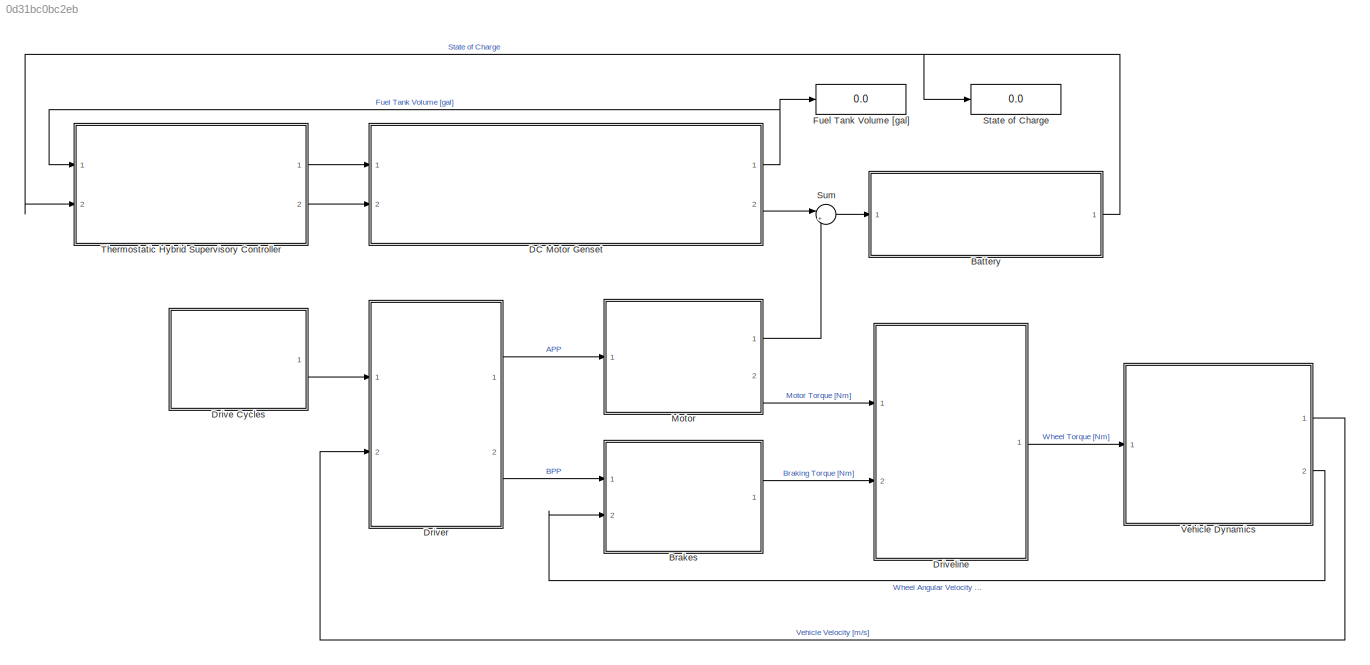
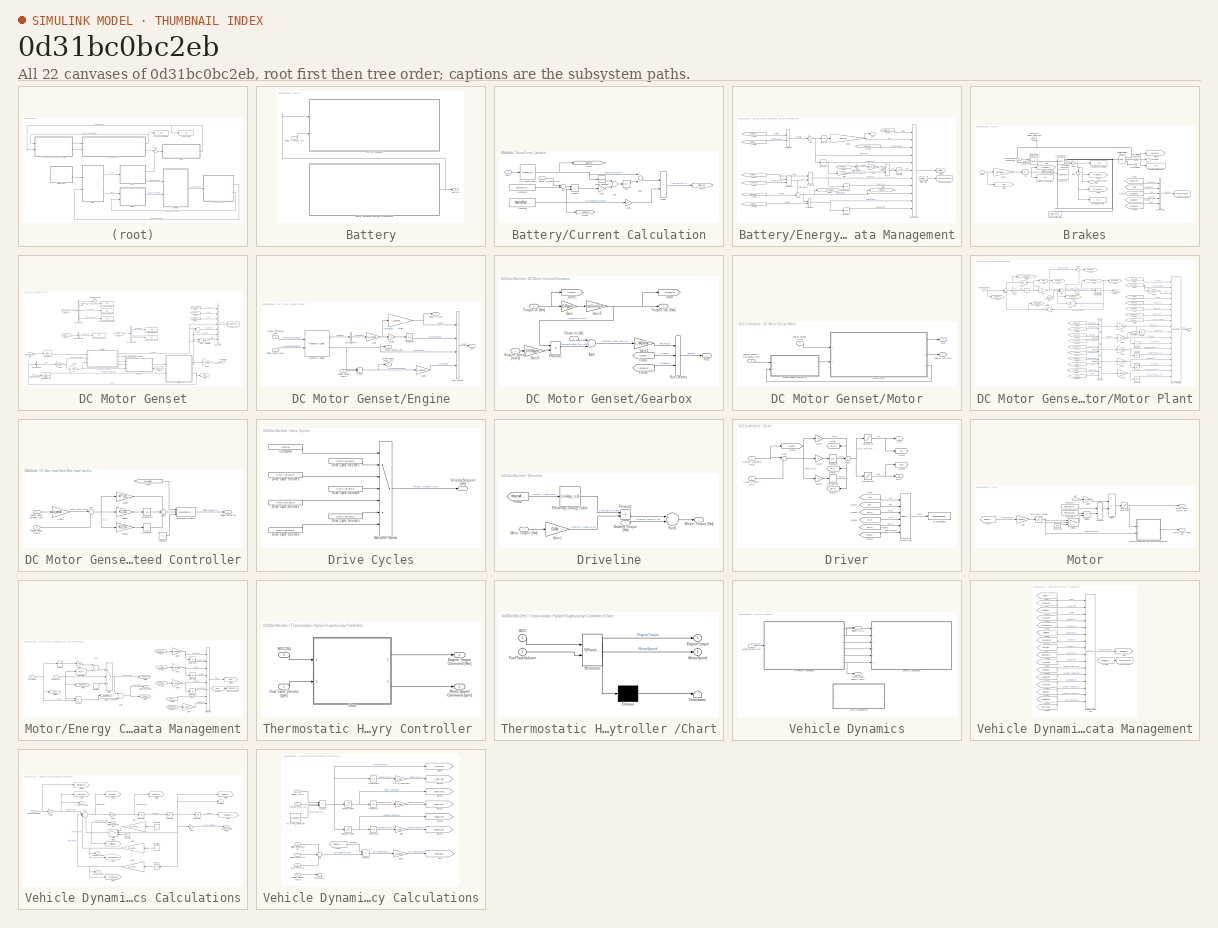
[diagram: thumbnail index - all 22 canvases of the model, root first then tree order]
MODEL slx_0d31bc0bc2eb
KIND model
CONFIG AbsTol = auto
CONFIG EnableMultiTasking = off
CONFIG FixedStep = dt
CONFIG MaxStep = auto
CONFIG MinStep = auto
CONFIG RelTol = 1e-3
CONFIG SampleTimeConstraint = Unconstrained
CONFIG Solver = ode4
CONFIG SolverName = ode4
CONFIG StartTime = 0
CONFIG StopTime = tEnd
BLOCK [SubSystem] Battery
  Ports = [1, 1]
  RequestExecContextInheritance = off
BLOCK [SubSystem] Battery/Current Calculation
  Ports = [2]
  RequestExecContextInheritance = off
BLOCK [Lookup_n-D] Battery/Current Calculation/1-D Lookup Table
  BreakpointsForDimension1 = SOCdata
  InternalRulePriority = Speed
  NumberOfTableDimensions = 1
  Ports = [1, 1]
  RndMeth = Simplest
  Table = openCircuitVoltageData
BLOCK [Sum] Battery/Current Calculation/Add
  InputSameDT = off
  Inputs = +-
  OutDataTypeStr = Inherit: Inherit via internal rule
  Ports = [2, 1]
  SaturateOnIntegerOverflow = off
BLOCK [Sum] Battery/Current Calculation/Add1
  InputSameDT = off
  Inputs = +-
  OutDataTypeStr = Inherit: Inherit via internal rule
  Ports = [2, 1]
  SaturateOnIntegerOverflow = off
BLOCK [Constant] Battery/Current Calculation/Constant
  Value = batteryResistance
BLOCK [Constant] Battery/Current Calculation/Constant2
  Value = accessoryLoad
BLOCK [Product] Battery/Current Calculation/Divide
  InputSameDT = off
  Inputs = */
  OutDataTypeStr = Inherit: Inherit via internal rule
  Ports = [2, 1]
  RndMeth = Floor
  SaturateOnIntegerOverflow = off
BLOCK [Gain] Battery/Current Calculation/Gain
  Gain = 4
  OutDataTypeStr = Inherit: Inherit via internal rule
  ParamDataTypeStr = Inherit: Inherit via internal rule
  SaturateOnIntegerOverflow = off
BLOCK [Gain] Battery/Current Calculation/Gain1
  Gain = 2
  OutDataTypeStr = Inherit: Inherit via internal rule
  ParamDataTypeStr = Inherit: Inherit via internal rule
  SaturateOnIntegerOverflow = off
BLOCK [Goto] Battery/Current Calculation/Goto
  GotoTag = batteryCurrent
  TagVisibility = global
BLOCK [Goto] Battery/Current Calculation/Goto1
  GotoTag = voltageOpenCircuit
  TagVisibility = global
BLOCK [Goto] Battery/Current Calculation/Goto2
  GotoTag = resistance
  TagVisibility = global
BLOCK [Math] Battery/Current Calculation/Math Function
  Operator = square
  Ports = [1, 1]
BLOCK [Inport] Battery/Current Calculation/Power to Motor [W]
  IconDisplay = Port number
  Port = 2
BLOCK [Product] Battery/Current Calculation/Product
  InputSameDT = off
  OutDataTypeStr = Inherit: Inherit via internal rule
  Ports = [2, 1]
  SaturateOnIntegerOverflow = off
BLOCK [Inport] Battery/Current Calculation/SOC
  IconDisplay = Port number
BLOCK [Sqrt] Battery/Current Calculation/Sqrt
BLOCK [Sum] Battery/Current Calculation/Sum
  InputSameDT = off
  OutDataTypeStr = Inherit: Inherit via internal rule
  Ports = [2, 1]
  SaturateOnIntegerOverflow = off
BLOCK [SubSystem] Battery/Energy Calculations and Data Management
  Ports = [0, 1]
  RequestExecContextInheritance = off
BLOCK [From] Battery/Energy Calculations and Data Management/Battery Info
  GotoTag = battery
  TagVisibility = global
BLOCK [BusCreator] Battery/Energy Calculations and Data Management/Bus Creator
  DisplayOption = bar
  InheritFromInputs = on
  Inputs = 11
  Ports = [11, 1]
BLOCK [BusSelector] Battery/Energy Calculations and Data Management/Bus Selector
  OutputAsBus = off
  OutputSignals = position
  Ports = [1, 1]
BLOCK [Product] Battery/Energy Calculations and Data Management/Divide
  InputSameDT = off
  Inputs = */
  OutDataTypeStr = Inherit: Inherit via internal rule
  Ports = [2, 1]
  RndMeth = Floor
  SaturateOnIntegerOverflow = off
BLOCK [From] Battery/Energy Calculations and Data Management/From
  GotoTag = vehicleDynamics
  TagVisibility = global
BLOCK [From] Battery/Energy Calculations and Data Management/From1
  GotoTag = batteryCurrent
  TagVisibility = global
BLOCK [From] Battery/Energy Calculations and Data Management/From2
  GotoTag = resistance
  TagVisibility = global
BLOCK [From] Battery/Energy Calculations and Data Management/From4
  GotoTag = batteryCurrent
  TagVisibility = global
BLOCK [From] Battery/Energy Calculations and Data Management/From5
  GotoTag = voltageOpenCircuit
  TagVisibility = global
BLOCK [From] Battery/Energy Calculations and Data Management/From6
  GotoTag = batteryCurrent
  TagVisibility = global
BLOCK [From] Battery/Energy Calculations and Data Management/From7
  GotoTag = batteryCurrent
  TagVisibility = global
BLOCK [From] Battery/Energy Calculations and Data Management/From8
  GotoTag = voltageOpenCircuit
  TagVisibility = global
BLOCK [From] Battery/Energy Calculations and Data Management/From9
  GotoTag = terminalVoltage
  TagVisibility = global
BLOCK [Gain] Battery/Energy Calculations and Data Management/Gain
  Gain = -k_J2gal
  OutDataTypeStr = Inherit: Inherit via internal rule
  ParamDataTypeStr = Inherit: Inherit via internal rule
  SaturateOnIntegerOverflow = off
BLOCK [Gain] Battery/Energy Calculations and Data Management/Gain1
  Gain = k_m2mi
  OutDataTypeStr = Inherit: Inherit via internal rule
  ParamDataTypeStr = Inherit: Inherit via internal rule
  SaturateOnIntegerOverflow = off
BLOCK [Gain] Battery/Energy Calculations and Data Management/Gain2
  Gain = -1
  OutDataTypeStr = Inherit: Inherit via internal rule
  ParamDataTypeStr = Inherit: Inherit via internal rule
  SaturateOnIntegerOverflow = off
BLOCK [Gain] Battery/Energy Calculations and Data Management/Gain3
  Gain = 100/(batteryCapacity * k_kWh2J)
  OutDataTypeStr = Inherit: Inherit via internal rule
  ParamDataTypeStr = Inherit: Inherit via internal rule
  SaturateOnIntegerOverflow = off
BLOCK [Goto] Battery/Energy Calculations and Data Management/Goto
  GotoTag = terminalVoltage
  TagVisibility = global
BLOCK [Goto] Battery/Energy Calculations and Data Management/Goto1
  GotoTag = busVoltage
  TagVisibility = global
BLOCK [Goto] Battery/Energy Calculations and Data Management/Goto3
  GotoTag = battery
  TagVisibility = global
BLOCK [Integrator] Battery/Energy Calculations and Data Management/Integrator
  InitialCondition = (SOCi / 100) * batteryCapacity *k_kWh2J
  Ports = [1, 1]
BLOCK [Integrator] Battery/Energy Calculations and Data Management/Integrator1
  Ports = [1, 1]
BLOCK [Integrator] Battery/Energy Calculations and Data Management/Integrator2
  Ports = [1, 1]
BLOCK [Integrator] Battery/Energy Calculations and Data Management/Integrator3
  Ports = [1, 1]
BLOCK [Product] Battery/Energy Calculations and Data Management/Product1
  InputSameDT = off
  OutDataTypeStr = Inherit: Inherit via internal rule
  Ports = [2, 1]
  RndMeth = Floor
  SaturateOnIntegerOverflow = off
BLOCK [Product] Battery/Energy Calculations and Data Management/Product2
  InputSameDT = off
  OutDataTypeStr = Inherit: Inherit via internal rule
  Ports = [2, 1]
  RndMeth = Floor
  SaturateOnIntegerOverflow = off
BLOCK [Product] Battery/Energy Calculations and Data Management/Product3
  InputSameDT = off
  OutDataTypeStr = Inherit: Inherit via internal rule
  Ports = [2, 1]
  RndMeth = Floor
  SaturateOnIntegerOverflow = off
BLOCK [Product] Battery/Energy Calculations and Data Management/Product4
  InputSameDT = off
  Inputs = **
  OutDataTypeStr = Inherit: Inherit via internal rule
  Ports = [2, 1]
  RndMeth = Floor
  SaturateOnIntegerOverflow = off
BLOCK [Outport] Battery/Energy Calculations and Data Management/SOC
  IconDisplay = Port number
BLOCK [Saturate] Battery/Energy Calculations and Data Management/Saturation
  InputPortMap = u0
  LowerLimit = 0
  Ports = [1, 1]
  UpperLimit = 300
BLOCK [Sum] Battery/Energy Calculations and Data Management/Sum
  IconShape = round
  InputSameDT = off
  Inputs = -+|
  OutDataTypeStr = Inherit: Inherit via internal rule
  Ports = [2, 1]
  SaturateOnIntegerOverflow = off
BLOCK [ToWorkspace] Battery/Energy Calculations and Data Management/To Workspace
  FixptAsFi = on
  MaxDataPoints = inf
  Ports = [1]
  SampleTime = -1
  SaveFormat = Timeseries
  VariableName = battery
BLOCK [Inport] Battery/Power to Motor [W]
  IconDisplay = Port number
BLOCK [Outport] Battery/SOC [%]
  IconDisplay = Port number
BLOCK [SubSystem] Brakes
  Ports = [2, 1]
  RequestExecContextInheritance = off
BLOCK [Abs] Brakes/Abs
  SaturateOnIntegerOverflow = off
BLOCK [Display] Brakes/Angular Velocity [rad//s]
  Decimation = 1
  Ports = [1]
BLOCK [Inport] Brakes/BPP
  IconDisplay = Port number
BLOCK [BusCreator] Brakes/Brakes Info
  DisplayOption = bar
  InheritFromInputs = on
  Inputs = 5
  Ports = [5, 1]
BLOCK [Display] Brakes/Braking Force [N]
  Decimation = 1
  Ports = [1]
BLOCK [Outport] Brakes/Braking Torque [Nm]
  IconDisplay = Port number
BLOCK [Display] Brakes/Cylinder Pressure [Pa]
  Decimation = 1
  Ports = [1]
BLOCK [Reference] Brakes/Disc Brake  REF=sdl_lib/Brakes & Detents/Rotational/Disc Brake
  Ports = [0, 0, 0, 0, 0, 2]
  SourceBlock = sdl_lib/Brakes & Detents/Rotational/Disc Brake
  SourceProductBaseCode = LD
  SourceProductName = Simscape Driveline
  SourceType = Disc Brake
BLOCK [From] Brakes/From
  GotoTag = angularVelocity
BLOCK [From] Brakes/From1
  GotoTag = BPP
BLOCK [From] Brakes/From2
  GotoTag = brakingForce
BLOCK [From] Brakes/From3
  GotoTag = brakingPressure
BLOCK [From] Brakes/From4
  GotoTag = brakingTorque
BLOCK [Gain] Brakes/Gain
  Gain = 1/r
  OutDataTypeStr = Inherit: Inherit via internal rule
  ParamDataTypeStr = Inherit: Inherit via internal rule
  SaturateOnIntegerOverflow = off
BLOCK [Gain] Brakes/Gain1
  Gain = pBrakeMax/100
  OutDataTypeStr = Inherit: Inherit via internal rule
  ParamDataTypeStr = Inherit: Inherit via internal rule
  SaturateOnIntegerOverflow = off
BLOCK [Gain] Brakes/Gain2
  Gain = -1
  OutDataTypeStr = Inherit: Inherit via internal rule
  ParamDataTypeStr = Inherit: Inherit via internal rule
  SaturateOnIntegerOverflow = off
BLOCK [Goto] Brakes/Goto
  GotoTag = brakingPressure
BLOCK [Goto] Brakes/Goto1
  GotoTag = angularVelocity
BLOCK [Goto] Brakes/Goto2
  GotoTag = brakingTorque
BLOCK [Goto] Brakes/Goto3
  GotoTag = brakingForce
BLOCK [Goto] Brakes/Goto4
  GotoTag = BPP
BLOCK [Reference] Brakes/Ideal Angular Velocity Source  REF=fl_lib/Mechanical/Mechanical Sources/Ideal Angular
Velocity Source
  Ports = [0, 0, 0, 0, 0, 1, 2]
  SourceBlock = fl_lib/Mechanical/Mechanical Sources/Ideal Angular\nVelocity Source
  SourceProductBaseCode = SS
  SourceProductName = Simscape
  SourceType = Ideal Angular\nVelocity Source
BLOCK [Reference] Brakes/Mechanical Rotational Reference  REF=fl_lib/Mechanical/Rotational Elements/Mechanical
Rotational Reference
  Ports = [0, 0, 0, 0, 0, 1]
  SourceBlock = fl_lib/Mechanical/Rotational Elements/Mechanical\nRotational Reference
  SourceProductBaseCode = SS
  SourceProductName = Simscape
  SourceType = Mechanical\nRotational Reference
BLOCK [Reference] Brakes/PS Terminator  REF=fl_lib/Physical Signals/Sinks/PS Terminator
  Ports = [0, 0, 0, 0, 0, 1]
  SourceBlock = fl_lib/Physical Signals/Sinks/PS Terminator
  SourceProductBaseCode = SS
  SourceProductName = Simscape
  SourceType = PS Terminator
BLOCK [Reference] Brakes/PS-Simulink Converter  REF=nesl_utility/PS-Simulink
Converter
  Ports = [0, 1, 0, 0, 0, 1]
  SourceBlock = nesl_utility/PS-Simulink\nConverter
  SourceProductBaseCode = SS
  SourceProductName = Simscape
  SourceType = PS-Simulink\nConverter
BLOCK [Reference] Brakes/PS-Simulink Converter1  REF=nesl_utility/PS-Simulink
Converter
  Ports = [0, 1, 0, 0, 0, 1]
  SourceBlock = nesl_utility/PS-Simulink\nConverter
  SourceProductBaseCode = SS
  SourceProductName = Simscape
  SourceType = PS-Simulink\nConverter
BLOCK [Reference] Brakes/Rotational Motion Sensor  REF=fl_lib/Mechanical/Mechanical Sensors/Ideal Rotational
Motion Sensor
  Ports = [0, 0, 0, 0, 0, 1, 3]
  SourceBlock = fl_lib/Mechanical/Mechanical Sensors/Ideal Rotational\nMotion Sensor
  SourceProductBaseCode = SS
  SourceProductName = Simscape
  SourceType = Ideal Rotational\nMotion Sensor
BLOCK [Reference] Brakes/Simulink-PS Converter  REF=nesl_utility/Simulink-PS
Converter
  Ports = [1, 0, 0, 0, 0, 0, 1]
  SourceBlock = nesl_utility/Simulink-PS\nConverter
  SourceProductBaseCode = SS
  SourceProductName = Simscape
  SourceType = Simulink-PS\nConverter
BLOCK [Reference] Brakes/Simulink-PS Converter1  REF=nesl_utility/Simulink-PS
Converter
  Ports = [1, 0, 0, 0, 0, 0, 1]
  SourceBlock = nesl_utility/Simulink-PS\nConverter
  SourceProductBaseCode = SS
  SourceProductName = Simscape
  SourceType = Simulink-PS\nConverter
BLOCK [Reference] Brakes/Solver Configuration  REF=nesl_utility/Solver
Configuration
  Ports = [0, 0, 0, 0, 0, 0, 1]
  SourceBlock = nesl_utility/Solver\nConfiguration
  SourceProductBaseCode = SS
  SourceProductName = Simscape
  SourceType = Solver\nConfiguration
BLOCK [Terminator] Brakes/Terminator
BLOCK [ToWorkspace] Brakes/To Workspace
  FixptAsFi = on
  MaxDataPoints = inf
  Ports = [1]
  SampleTime = -1
  SaveFormat = Timeseries
  VariableName = brakes
BLOCK [Reference] Brakes/Torque Sensor  REF=fl_lib/Mechanical/Mechanical Sensors/Ideal Torque Sensor
  Ports = [0, 0, 0, 0, 0, 1, 2]
  SourceBlock = fl_lib/Mechanical/Mechanical Sensors/Ideal Torque Sensor
  SourceProductBaseCode = SS
  SourceProductName = Simscape
  SourceType = Ideal Torque Sensor
BLOCK [Inport] Brakes/Wheel Angular Velocity [rad//s]
  IconDisplay = Port number
  Port = 2
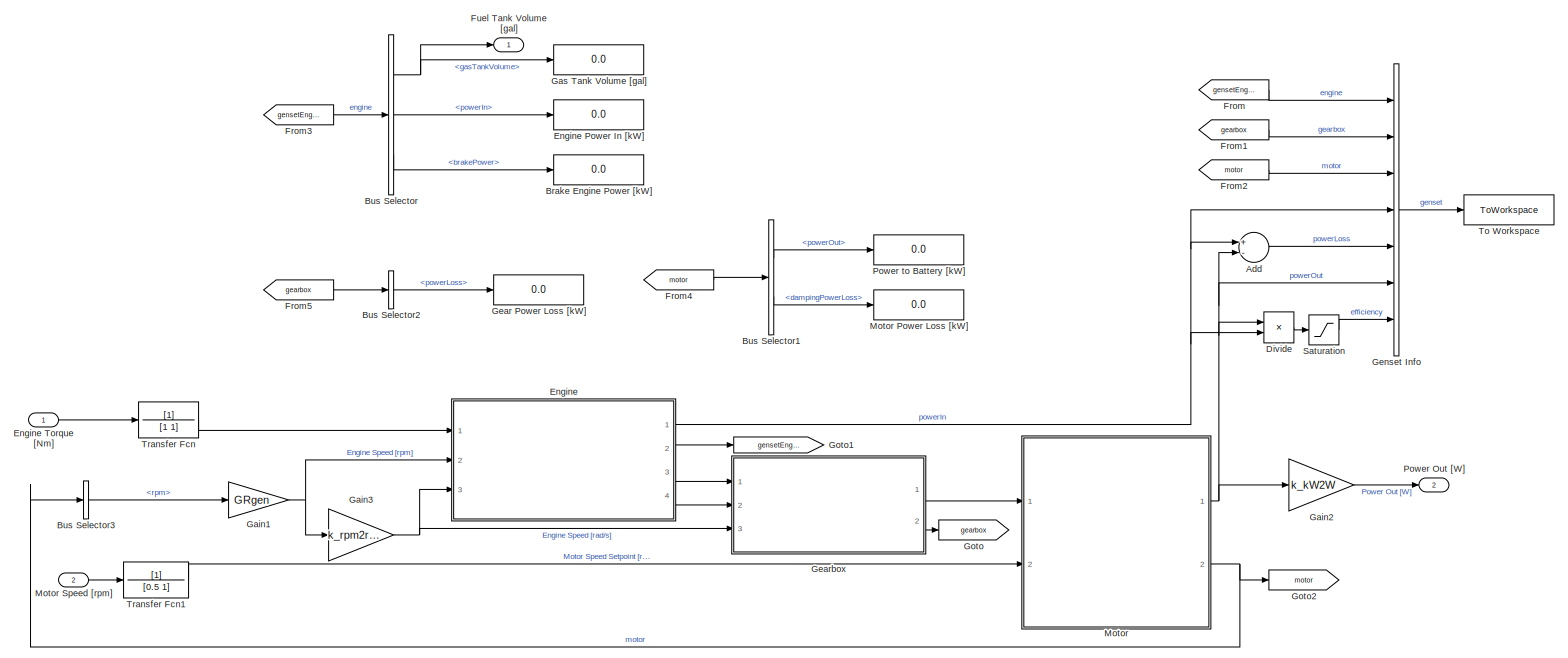
[diagram: DC Motor Genset - part 1/1, most of the canvas]
BLOCK [SubSystem] DC Motor Genset
  Ports = [2, 2]
  RequestExecContextInheritance = off
BLOCK [Sum] DC Motor Genset/Add
  InputSameDT = off
  Inputs = +-
  OutDataTypeStr = Inherit: Inherit via internal rule
  Ports = [2, 1]
  SaturateOnIntegerOverflow = off
BLOCK [Display] DC Motor Genset/Brake Engine Power [kW]
  Decimation = 1
  Ports = [1]
BLOCK [BusSelector] DC Motor Genset/Bus Selector
  OutputAsBus = off
  OutputSignals = gasTankVolume,powerIn,brakePower
  Ports = [1, 3]
BLOCK [BusSelector] DC Motor Genset/Bus Selector1
  OutputAsBus = off
  OutputSignals = powerOut,dampingPowerLoss
  Ports = [1, 2]
BLOCK [BusSelector] DC Motor Genset/Bus Selector2
  OutputAsBus = off
  OutputSignals = powerLoss
  Ports = [1, 1]
BLOCK [BusSelector] DC Motor Genset/Bus Selector3
  OutputAsBus = off
  OutputSignals = rpm
  Ports = [1, 1]
BLOCK [Product] DC Motor Genset/Divide
  InputSameDT = off
  Inputs = */
  OutDataTypeStr = Inherit: Inherit via internal rule
  Ports = [2, 1]
  RndMeth = Floor
  SaturateOnIntegerOverflow = off
BLOCK [SubSystem] DC Motor Genset/Engine
  Ports = [3, 4]
  RequestExecContextInheritance = off
BLOCK [Display] DC Motor Genset/Engine Power In [kW]
  Decimation = 1
  Ports = [1]
BLOCK [Inport] DC Motor Genset/Engine Torque [Nm]
  IconDisplay = Port number
BLOCK [Outport] DC Motor Genset/Engine/Brake Engine Power [W]
  IconDisplay = Port number
  Port = 4
BLOCK [Outport] DC Motor Genset/Engine/Brake Torque [Nm]
  IconDisplay = Port number
  Port = 3
BLOCK [BusCreator] DC Motor Genset/Engine/Bus Creator
  DisplayOption = bar
  InheritFromInputs = on
  Inputs = 4
  Ports = [4, 1]
BLOCK [BusSelector] DC Motor Genset/Engine/Bus Selector
  OutputAsBus = off
  OutputSignals = FuelVolFlw
  Ports = [1, 1]
BLOCK [Inport] DC Motor Genset/Engine/Engine Speed [rad//s]
  IconDisplay = Port number
  Port = 3
BLOCK [Inport] DC Motor Genset/Engine/Engine Speed [rpm]
  IconDisplay = Port number
  Port = 2
BLOCK [Gain] DC Motor Genset/Engine/Gain
  Gain = k_m32gal
  OutDataTypeStr = Inherit: Inherit via internal rule
  ParamDataTypeStr = Inherit: Inherit via internal rule
  SaturateOnIntegerOverflow = off
BLOCK [Gain] DC Motor Genset/Engine/Gain1
  Gain = k_gal2kWh*k_hr2s
  OutDataTypeStr = Inherit: Inherit via internal rule
  ParamDataTypeStr = Inherit: Inherit via internal rule
  SaturateOnIntegerOverflow = off
BLOCK [Gain] DC Motor Genset/Engine/Gain2
  Gain = k_W2kW
  OutDataTypeStr = Inherit: Inherit via internal rule
  ParamDataTypeStr = Inherit: Inherit via internal rule
  SaturateOnIntegerOverflow = off
BLOCK [Gain] DC Motor Genset/Engine/Gain3
  Gain = -1
  OutDataTypeStr = Inherit: Inherit via internal rule
  ParamDataTypeStr = Inherit: Inherit via internal rule
  SaturateOnIntegerOverflow = off
BLOCK [Outport] DC Motor Genset/Engine/Info
  IconDisplay = Port number
  Port = 2
BLOCK [Integrator] DC Motor Genset/Engine/Integrator
  InitialCondition = initialGasVolume
  Ports = [1, 1]
BLOCK [Reference] DC Motor Genset/Engine/Mapped SI Engine  REF=autolibsharedmappedengines/Mapped SI Engine
  Ports = [2, 2]
  SourceBlock = autolibsharedmappedengines/Mapped SI Engine
  SourceProductBaseCode = PW
  SourceProductName = Powertrain Blockset
  SourceType = Mapped SI Engine
BLOCK [Outport] DC Motor Genset/Engine/Power In [kW]
  IconDisplay = Port number
BLOCK [Product] DC Motor Genset/Engine/Product
  InputSameDT = off
  OutDataTypeStr = Inherit: Inherit via internal rule
  Ports = [2, 1]
  RndMeth = Floor
  SaturateOnIntegerOverflow = off
BLOCK [Inport] DC Motor Genset/Engine/Torque Command [Nm]
  IconDisplay = Port number
BLOCK [From] DC Motor Genset/From
  GotoTag = gensetEngine
  TagVisibility = global
BLOCK [From] DC Motor Genset/From1
  GotoTag = gearbox
BLOCK [From] DC Motor Genset/From2
  GotoTag = motor
BLOCK [From] DC Motor Genset/From3
  GotoTag = gensetEngine
  TagVisibility = global
BLOCK [From] DC Motor Genset/From4
  GotoTag = motor
BLOCK [From] DC Motor Genset/From5
  GotoTag = gearbox
BLOCK [Outport] DC Motor Genset/Fuel Tank Volume [gal]
  IconDisplay = Port number
BLOCK [Gain] DC Motor Genset/Gain1
  Gain = GRgen
  OutDataTypeStr = Inherit: Inherit via internal rule
  ParamDataTypeStr = Inherit: Inherit via internal rule
  SaturateOnIntegerOverflow = off
BLOCK [Gain] DC Motor Genset/Gain2
  Gain = k_kW2W
  OutDataTypeStr = Inherit: Inherit via internal rule
  ParamDataTypeStr = Inherit: Inherit via internal rule
  SaturateOnIntegerOverflow = off
BLOCK [Gain] DC Motor Genset/Gain3
  Gain = k_rpm2rps
  OutDataTypeStr = Inherit: Inherit via internal rule
  ParamDataTypeStr = Inherit: Inherit via internal rule
  SaturateOnIntegerOverflow = off
BLOCK [Display] DC Motor Genset/Gas Tank Volume [gal]
  Decimation = 1
  Ports = [1]
BLOCK [Display] DC Motor Genset/Gear Power Loss [kW]
  Decimation = 1
  Ports = [1]
BLOCK [SubSystem] DC Motor Genset/Gearbox
  Ports = [3, 2]
  RequestExecContextInheritance = off
BLOCK [Sum] DC Motor Genset/Gearbox/Add
  InputSameDT = off
  Inputs = +-
  OutDataTypeStr = Inherit: Inherit via internal rule
  Ports = [2, 1]
  SaturateOnIntegerOverflow = off
BLOCK [BusCreator] DC Motor Genset/Gearbox/Bus Creator
  DisplayOption = bar
  InheritFromInputs = on
  Inputs = 3
  Ports = [3, 1]
BLOCK [Inport] DC Motor Genset/Gearbox/Engine Speed [rad//s]
  IconDisplay = Port number
  Port = 3
BLOCK [From] DC Motor Genset/Gearbox/From
  GotoTag = torqueIn
BLOCK [From] DC Motor Genset/Gearbox/From1
  GotoTag = torqueOut
BLOCK [Gain] DC Motor Genset/Gearbox/Gain
  Gain = GRgen
  OutDataTypeStr = Inherit: Inherit via internal rule
  ParamDataTypeStr = Inherit: Inherit via internal rule
  SaturateOnIntegerOverflow = off
BLOCK [Gain] DC Motor Genset/Gearbox/Gain1
  Gain = k_W2kW
  OutDataTypeStr = Inherit: Inherit via internal rule
  ParamDataTypeStr = Inherit: Inherit via internal rule
  SaturateOnIntegerOverflow = off
BLOCK [Gain] DC Motor Genset/Gearbox/Gain2
  Gain = etaGenGR
  OutDataTypeStr = Inherit: Inherit via internal rule
  ParamDataTypeStr = Inherit: Inherit via internal rule
  SaturateOnIntegerOverflow = off
BLOCK [Gain] DC Motor Genset/Gearbox/Gain3
  Gain = 1/GRgen
  OutDataTypeStr = Inherit: Inherit via internal rule
  ParamDataTypeStr = Inherit: Inherit via internal rule
  SaturateOnIntegerOverflow = off
BLOCK [Goto] DC Motor Genset/Gearbox/Goto
  GotoTag = torqueOut
BLOCK [Goto] DC Motor Genset/Gearbox/Goto1
  GotoTag = torqueIn
BLOCK [Outport] DC Motor Genset/Gearbox/Info
  IconDisplay = Port number
  Port = 2
BLOCK [Inport] DC Motor Genset/Gearbox/Power In [W]
  IconDisplay = Port number
  Port = 2
BLOCK [Product] DC Motor Genset/Gearbox/Product1
  InputSameDT = off
  OutDataTypeStr = Inherit: Inherit via internal rule
  Ports = [2, 1]
  RndMeth = Floor
  SaturateOnIntegerOverflow = off
BLOCK [Inport] DC Motor Genset/Gearbox/Torque In [Nm]
  IconDisplay = Port number
BLOCK [Outport] DC Motor Genset/Gearbox/Torque Out [Nm]
  IconDisplay = Port number
BLOCK [BusCreator] DC Motor Genset/Genset Info
  DisplayOption = bar
  InheritFromInputs = on
  Inputs = 7
  Ports = [7, 1]
BLOCK [Goto] DC Motor Genset/Goto
  GotoTag = gearbox
BLOCK [Goto] DC Motor Genset/Goto1
  GotoTag = gensetEngine
  TagVisibility = global
BLOCK [Goto] DC Motor Genset/Goto2
  GotoTag = motor
BLOCK [SubSystem] DC Motor Genset/Motor
  Ports = [2, 2]
  RequestExecContextInheritance = off
BLOCK [Display] DC Motor Genset/Motor Power Loss [kW]
  Decimation = 1
  Ports = [1]
BLOCK [Inport] DC Motor Genset/Motor Speed [rpm]
  IconDisplay = Port number
  Port = 2
BLOCK [Inport] DC Motor Genset/Motor/Angular Velocity Command [rpm]
  IconDisplay = Port number
  Port = 2
  VarSizeSig = No
BLOCK [Inport] DC Motor Genset/Motor/Engine Torque [Nm]
  IconDisplay = Port number
  VarSizeSig = No
BLOCK [Outport] DC Motor Genset/Motor/Info
  IconDisplay = Port number
  Port = 2
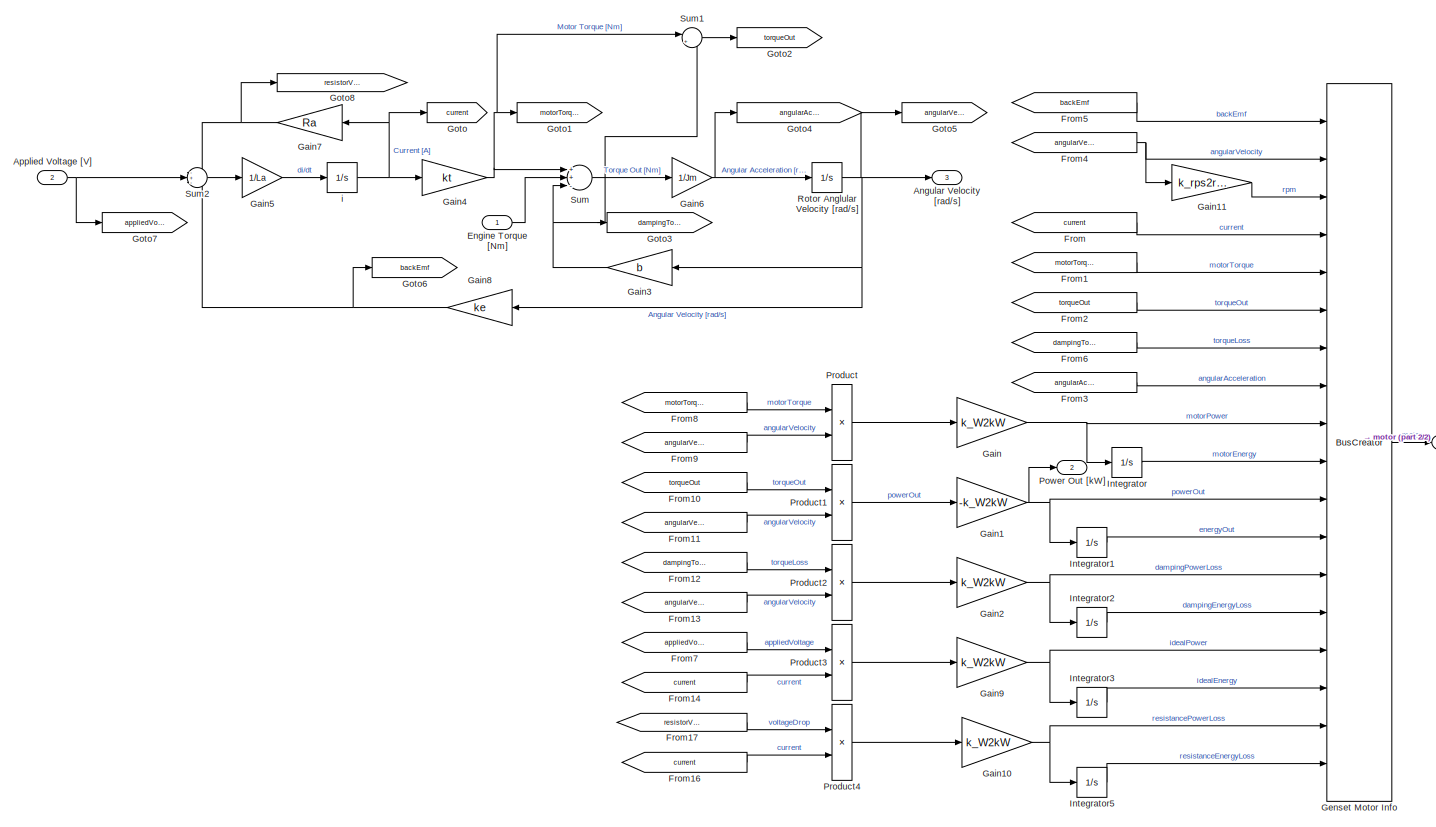
[diagram: DC Motor Genset/Motor/Motor Plant - part 1/2, most of the canvas]
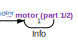
[diagram: DC Motor Genset/Motor/Motor Plant - part 2/2, middle right region]
BLOCK [SubSystem] DC Motor Genset/Motor/Motor Plant
  Ports = [2, 3]
  RequestExecContextInheritance = off
BLOCK [Outport] DC Motor Genset/Motor/Motor Plant/Angular Velocity [rad//s]
  IconDisplay = Port number
  Port = 3
BLOCK [Inport] DC Motor Genset/Motor/Motor Plant/Applied Voltage [V]
  IconDisplay = Port number
  Port = 2
  VarSizeSig = No
BLOCK [Inport] DC Motor Genset/Motor/Motor Plant/Engine Torque [Nm]
  IconDisplay = Port number
BLOCK [From] DC Motor Genset/Motor/Motor Plant/From
  GotoTag = current
BLOCK [From] DC Motor Genset/Motor/Motor Plant/From1
  GotoTag = motorTorque
BLOCK [From] DC Motor Genset/Motor/Motor Plant/From10
  GotoTag = torqueOut
BLOCK [From] DC Motor Genset/Motor/Motor Plant/From11
  GotoTag = angularVelocity
BLOCK [From] DC Motor Genset/Motor/Motor Plant/From12
  GotoTag = dampingTorqueLoss
BLOCK [From] DC Motor Genset/Motor/Motor Plant/From13
  GotoTag = angularVelocity
BLOCK [From] DC Motor Genset/Motor/Motor Plant/From14
  GotoTag = current
BLOCK [From] DC Motor Genset/Motor/Motor Plant/From16
  GotoTag = current
BLOCK [From] DC Motor Genset/Motor/Motor Plant/From17
  GotoTag = resistorVoltageDrop
BLOCK [From] DC Motor Genset/Motor/Motor Plant/From2
  GotoTag = torqueOut
BLOCK [From] DC Motor Genset/Motor/Motor Plant/From3
  GotoTag = angularAcceleration
BLOCK [From] DC Motor Genset/Motor/Motor Plant/From4
  GotoTag = angularVelocity
BLOCK [From] DC Motor Genset/Motor/Motor Plant/From5
  GotoTag = backEmf
BLOCK [From] DC Motor Genset/Motor/Motor Plant/From6
  GotoTag = dampingTorqueLoss
BLOCK [From] DC Motor Genset/Motor/Motor Plant/From7
  GotoTag = appliedVoltage
BLOCK [From] DC Motor Genset/Motor/Motor Plant/From8
  GotoTag = motorTorque
BLOCK [From] DC Motor Genset/Motor/Motor Plant/From9
  GotoTag = angularVelocity
BLOCK [Gain] DC Motor Genset/Motor/Motor Plant/Gain
  Gain = k_W2kW
  OutDataTypeStr = Inherit: Inherit via internal rule
  ParamDataTypeStr = Inherit: Inherit via internal rule
  SaturateOnIntegerOverflow = off
BLOCK [Gain] DC Motor Genset/Motor/Motor Plant/Gain1
  Gain = -k_W2kW
  OutDataTypeStr = Inherit: Inherit via internal rule
  ParamDataTypeStr = Inherit: Inherit via internal rule
  SaturateOnIntegerOverflow = off
BLOCK [Gain] DC Motor Genset/Motor/Motor Plant/Gain10
  Gain = k_W2kW
  OutDataTypeStr = Inherit: Inherit via internal rule
  ParamDataTypeStr = Inherit: Inherit via internal rule
  SaturateOnIntegerOverflow = off
BLOCK [Gain] DC Motor Genset/Motor/Motor Plant/Gain11
  Gain = k_rps2rpm
  OutDataTypeStr = Inherit: Inherit via internal rule
  ParamDataTypeStr = Inherit: Inherit via internal rule
  SaturateOnIntegerOverflow = off
BLOCK [Gain] DC Motor Genset/Motor/Motor Plant/Gain2
  Gain = k_W2kW
  OutDataTypeStr = Inherit: Inherit via internal rule
  ParamDataTypeStr = Inherit: Inherit via internal rule
  SaturateOnIntegerOverflow = off
BLOCK [Gain] DC Motor Genset/Motor/Motor Plant/Gain3
  Gain = b
  OutDataTypeStr = Inherit: Inherit via internal rule
  ParamDataTypeStr = Inherit: Inherit via internal rule
  SaturateOnIntegerOverflow = off
BLOCK [Gain] DC Motor Genset/Motor/Motor Plant/Gain4
  Gain = kt
  OutDataTypeStr = Inherit: Inherit via internal rule
  ParamDataTypeStr = Inherit: Inherit via internal rule
  SaturateOnIntegerOverflow = off
BLOCK [Gain] DC Motor Genset/Motor/Motor Plant/Gain5
  Gain = 1/La
  OutDataTypeStr = Inherit: Inherit via internal rule
  ParamDataTypeStr = Inherit: Inherit via internal rule
  SaturateOnIntegerOverflow = off
BLOCK [Gain] DC Motor Genset/Motor/Motor Plant/Gain6
  Gain = 1/Jm
  OutDataTypeStr = Inherit: Inherit via internal rule
  ParamDataTypeStr = Inherit: Inherit via internal rule
  SaturateOnIntegerOverflow = off
BLOCK [Gain] DC Motor Genset/Motor/Motor Plant/Gain7
  Gain = Ra
  OutDataTypeStr = Inherit: Inherit via internal rule
  ParamDataTypeStr = Inherit: Inherit via internal rule
  SaturateOnIntegerOverflow = off
BLOCK [Gain] DC Motor Genset/Motor/Motor Plant/Gain8
  Gain = ke
  OutDataTypeStr = Inherit: Inherit via internal rule
  ParamDataTypeStr = Inherit: Inherit via internal rule
  SaturateOnIntegerOverflow = off
BLOCK [Gain] DC Motor Genset/Motor/Motor Plant/Gain9
  Gain = k_W2kW
  OutDataTypeStr = Inherit: Inherit via internal rule
  ParamDataTypeStr = Inherit: Inherit via internal rule
  SaturateOnIntegerOverflow = off
BLOCK [BusCreator] DC Motor Genset/Motor/Motor Plant/Genset Motor Info
  DisplayOption = bar
  InheritFromInputs = on
  Inputs = 18
  Ports = [18, 1]
BLOCK [Goto] DC Motor Genset/Motor/Motor Plant/Goto
  GotoTag = current
BLOCK [Goto] DC Motor Genset/Motor/Motor Plant/Goto1
  GotoTag = motorTorque
BLOCK [Goto] DC Motor Genset/Motor/Motor Plant/Goto2
  GotoTag = torqueOut
BLOCK [Goto] DC Motor Genset/Motor/Motor Plant/Goto3
  GotoTag = dampingTorqueLoss
BLOCK [Goto] DC Motor Genset/Motor/Motor Plant/Goto4
  GotoTag = angularAcceleration
BLOCK [Goto] DC Motor Genset/Motor/Motor Plant/Goto5
  GotoTag = angularVelocity
BLOCK [Goto] DC Motor Genset/Motor/Motor Plant/Goto6
  GotoTag = backEmf
BLOCK [Goto] DC Motor Genset/Motor/Motor Plant/Goto7
  GotoTag = appliedVoltage
BLOCK [Goto] DC Motor Genset/Motor/Motor Plant/Goto8
  GotoTag = resistorVoltageDrop
BLOCK [Outport] DC Motor Genset/Motor/Motor Plant/Info
  IconDisplay = Port number
BLOCK [Integrator] DC Motor Genset/Motor/Motor Plant/Integrator
  Ports = [1, 1]
BLOCK [Integrator] DC Motor Genset/Motor/Motor Plant/Integrator1
  Ports = [1, 1]
BLOCK [Integrator] DC Motor Genset/Motor/Motor Plant/Integrator2
  Ports = [1, 1]
BLOCK [Integrator] DC Motor Genset/Motor/Motor Plant/Integrator3
  Ports = [1, 1]
BLOCK [Integrator] DC Motor Genset/Motor/Motor Plant/Integrator5
  Ports = [1, 1]
BLOCK [Outport] DC Motor Genset/Motor/Motor Plant/Power Out [kW]
  IconDisplay = Port number
  Port = 2
BLOCK [Product] DC Motor Genset/Motor/Motor Plant/Product
  InputSameDT = off
  OutDataTypeStr = Inherit: Inherit via internal rule
  Ports = [2, 1]
  RndMeth = Floor
  SaturateOnIntegerOverflow = off
BLOCK [Product] DC Motor Genset/Motor/Motor Plant/Product1
  InputSameDT = off
  OutDataTypeStr = Inherit: Inherit via internal rule
  Ports = [2, 1]
  RndMeth = Floor
  SaturateOnIntegerOverflow = off
BLOCK [Product] DC Motor Genset/Motor/Motor Plant/Product2
  InputSameDT = off
  OutDataTypeStr = Inherit: Inherit via internal rule
  Ports = [2, 1]
  RndMeth = Floor
  SaturateOnIntegerOverflow = off
BLOCK [Product] DC Motor Genset/Motor/Motor Plant/Product3
  InputSameDT = off
  OutDataTypeStr = Inherit: Inherit via internal rule
  Ports = [2, 1]
  RndMeth = Floor
  SaturateOnIntegerOverflow = off
BLOCK [Product] DC Motor Genset/Motor/Motor Plant/Product4
  InputSameDT = off
  OutDataTypeStr = Inherit: Inherit via internal rule
  Ports = [2, 1]
  RndMeth = Floor
  SaturateOnIntegerOverflow = off
BLOCK [Integrator] DC Motor Genset/Motor/Motor Plant/Rotor Anglular Velocity [rad//s]
  Ports = [1, 1]
BLOCK [Sum] DC Motor Genset/Motor/Motor Plant/Sum
  InputSameDT = off
  Inputs = ++-
  OutDataTypeStr = Inherit: Inherit via internal rule
  Ports = [3, 1]
  SaturateOnIntegerOverflow = off
BLOCK [Sum] DC Motor Genset/Motor/Motor Plant/Sum1
  IconShape = round
  InputSameDT = off
  Inputs = |+-
  OutDataTypeStr = Inherit: Inherit via internal rule
  Ports = [2, 1]
  SaturateOnIntegerOverflow = off
BLOCK [Sum] DC Motor Genset/Motor/Motor Plant/Sum2
  IconShape = round
  InputSameDT = off
  Inputs = -+-
  OutDataTypeStr = Inherit: Inherit via internal rule
  Ports = [3, 1]
  SaturateOnIntegerOverflow = off
BLOCK [Integrator] DC Motor Genset/Motor/Motor Plant/i
  Ports = [1, 1]
BLOCK [SubSystem] DC Motor Genset/Motor/Motor Speed Controller
  Ports = [2, 1]
  RequestExecContextInheritance = off
BLOCK [Inport] DC Motor Genset/Motor/Motor Speed Controller/Angular Velocity Setpoint [rpm]
  IconDisplay = Port number
BLOCK [Inport] DC Motor Genset/Motor/Motor Speed Controller/Angular Velocity [rad//s]
  IconDisplay = Port number
  Port = 2
BLOCK [Outport] DC Motor Genset/Motor/Motor Speed Controller/Applied Voltage [V]
  IconDisplay = Port number
BLOCK [Constant] DC Motor Genset/Motor/Motor Speed Controller/Constant
  Value = 0
BLOCK [Derivative] DC Motor Genset/Motor/Motor Speed Controller/Derivative
BLOCK [From] DC Motor Genset/Motor/Motor Speed Controller/From
  GotoTag = busVoltage
  TagVisibility = global
BLOCK [Gain] DC Motor Genset/Motor/Motor Speed Controller/Gain10
  Gain = KI_DC
  OutDataTypeStr = Inherit: Inherit via internal rule
  ParamDataTypeStr = Inherit: Inherit via internal rule
  SaturateOnIntegerOverflow = off
BLOCK [Gain] DC Motor Genset/Motor/Motor Speed Controller/Gain11
  Gain = KD_DC
  OutDataTypeStr = Inherit: Inherit via internal rule
  ParamDataTypeStr = Inherit: Inherit via internal rule
  SaturateOnIntegerOverflow = off
BLOCK [Gain] DC Motor Genset/Motor/Motor Speed Controller/Gain12
  Gain = k_rpm2rps
  OutDataTypeStr = Inherit: Inherit via internal rule
  ParamDataTypeStr = Inherit: Inherit via internal rule
  SaturateOnIntegerOverflow = off
BLOCK [Gain] DC Motor Genset/Motor/Motor Speed Controller/Gain9
  Gain = KP_DC
  OutDataTypeStr = Inherit: Inherit via internal rule
  ParamDataTypeStr = Inherit: Inherit via internal rule
  SaturateOnIntegerOverflow = off
BLOCK [Integrator] DC Motor Genset/Motor/Motor Speed Controller/Integrator3
  Ports = [1, 1]
BLOCK [Reference] DC Motor Genset/Motor/Motor Speed Controller/Saturation Dynamic  REF=simulink/Discontinuities/Saturation
Dynamic
  Ports = [3, 1]
  SourceBlock = simulink/Discontinuities/Saturation\nDynamic
  SourceProductBaseCode = SL
  SourceProductName = Simulink
  SourceType = Saturation Dynamic
BLOCK [Sum] DC Motor Genset/Motor/Motor Speed Controller/Sum
  IconShape = round
  InputSameDT = off
  Inputs = |+-
  OutDataTypeStr = Inherit: Inherit via internal rule
  Ports = [2, 1]
  SaturateOnIntegerOverflow = off
BLOCK [Sum] DC Motor Genset/Motor/Motor Speed Controller/Sum3
  IconShape = round
  InputSameDT = off
  Inputs = +++
  OutDataTypeStr = Inherit: Inherit via internal rule
  Ports = [3, 1]
  SaturateOnIntegerOverflow = off
BLOCK [Outport] DC Motor Genset/Motor/Power Out [kW]
  IconDisplay = Port number
BLOCK [Outport] DC Motor Genset/Power Out [W]
  IconDisplay = Port number
  Port = 2
BLOCK [Display] DC Motor Genset/Power to Battery [kW]
  Decimation = 1
  Ports = [1]
BLOCK [Saturate] DC Motor Genset/Saturation
  InputPortMap = u0
  LowerLimit = 0
  Ports = [1, 1]
  UpperLimit = 1
BLOCK [ToWorkspace] DC Motor Genset/To Workspace
  FixptAsFi = on
  MaxDataPoints = inf
  Ports = [1]
  SampleTime = -1
  SaveFormat = Timeseries
  VariableName = genset
BLOCK [TransferFcn] DC Motor Genset/Transfer Fcn
  Denominator = [1 1]
BLOCK [TransferFcn] DC Motor Genset/Transfer Fcn1
  Denominator = [0.5 1]
BLOCK [SubSystem] Drive Cycles
  Ports = [0, 1]
  RequestExecContextInheritance = off
BLOCK [Constant] Drive Cycles/Constant
  Value = cycleNum
BLOCK [Reference] Drive Cycles/Drive Cycle Source1  REF=autolibshared/Drive Cycle Source
  AttributesFormatString = %<cycleVar> (%<tfinal>)
  Ports = [0, 1]
  SourceBlock = autolibshared/Drive Cycle Source
  SourceProductBaseCode = PW
  SourceProductName = Powertrain Blockset
  SourceType = Drive Cycle Source
BLOCK [Reference] Drive Cycles/Drive Cycle Source2  REF=autolibshared/Drive Cycle Source
  AttributesFormatString = %<cycleVar> (%<tfinal>)
  Ports = [0, 1]
  SourceBlock = autolibshared/Drive Cycle Source
  SourceProductBaseCode = PW
  SourceProductName = Powertrain Blockset
  SourceType = Drive Cycle Source
BLOCK [Reference] Drive Cycles/Drive Cycle Source3  REF=autolibshared/Drive Cycle Source
  AttributesFormatString = %<cycleVar> (%<tfinal>)
  Ports = [0, 1]
  SourceBlock = autolibshared/Drive Cycle Source
  SourceProductBaseCode = PW
  SourceProductName = Powertrain Blockset
  SourceType = Drive Cycle Source
BLOCK [Reference] Drive Cycles/Drive Cycle Source4  REF=autolibshared/Drive Cycle Source
  AttributesFormatString = %<cycleVar> (%<tfinal>)
  Ports = [0, 1]
  SourceBlock = autolibshared/Drive Cycle Source
  SourceProductBaseCode = PW
  SourceProductName = Powertrain Blockset
  SourceType = Drive Cycle Source
BLOCK [Reference] Drive Cycles/Drive Cycle Source5  REF=autolibshared/Drive Cycle Source
  AttributesFormatString = %<cycleVar> (%<tfinal>)
  Ports = [0, 1]
  SourceBlock = autolibshared/Drive Cycle Source
  SourceProductBaseCode = PW
  SourceProductName = Powertrain Blockset
  SourceType = Drive Cycle Source
BLOCK [Reference] Drive Cycles/Drive Cycle Source6  REF=autolibshared/Drive Cycle Source
  AttributesFormatString = %<cycleVar> (%<tfinal>)
  Ports = [0, 1]
  SourceBlock = autolibshared/Drive Cycle Source
  SourceProductBaseCode = PW
  SourceProductName = Powertrain Blockset
  SourceType = Drive Cycle Source
BLOCK [MultiPortSwitch] Drive Cycles/Multiport Switch
  InputSameDT = off
  Inputs = 6
  Ports = [7, 1]
  SaturateOnIntegerOverflow = off
BLOCK [Outport] Drive Cycles/Velocity Setpoint [m//s]
  IconDisplay = Port number
BLOCK [SubSystem] Driveline
  Ports = [2, 1]
  RequestExecContextInheritance = off
BLOCK [Inport] Driveline/Braking Torque [Nm]
  IconDisplay = Port number
  Port = 2
BLOCK [Lookup_n-D] Driveline/Efficiency Look-up Table
  BreakpointsForDimension1 = EffTableSpeed
  InternalRulePriority = Speed
  NumberOfTableDimensions = 1
  Ports = [1, 1]
  RndMeth = Simplest
  Table = EffTableEff
BLOCK [From] Driveline/From1
  GotoTag = velocityActual
  TagVisibility = global
BLOCK [Gain] Driveline/Gain1
  Gain = GRd
  OutDataTypeStr = Inherit: Inherit via internal rule
  ParamDataTypeStr = Inherit: Inherit via internal rule
  SaturateOnIntegerOverflow = off
BLOCK [Inport] Driveline/Motor Torque [Nm]
  IconDisplay = Port number
BLOCK [Product] Driveline/Product1
  InputSameDT = off
  OutDataTypeStr = Inherit: Inherit via internal rule
  Ports = [2, 1]
  RndMeth = Floor
  SaturateOnIntegerOverflow = off
BLOCK [Sum] Driveline/Sum1
  InputSameDT = off
  OutDataTypeStr = Inherit: Inherit via internal rule
  Ports = [2, 1]
  SaturateOnIntegerOverflow = off
BLOCK [Outport] Driveline/Wheel Torque [Nm]
  IconDisplay = Port number
BLOCK [SubSystem] Driver
  Ports = [2, 2]
  RequestExecContextInheritance = off
BLOCK [Outport] Driver/APP
  IconDisplay = Port number
BLOCK [Inport] Driver/Actual Velocity [m//s]
  IconDisplay = Port number
  Port = 2
BLOCK [Outport] Driver/BPP
  IconDisplay = Port number
  Port = 2
BLOCK [Derivative] Driver/Derivative
BLOCK [BusCreator] Driver/Driver Info
  DisplayOption = bar
  InheritFromInputs = on
  Inputs = 6
  Ports = [6, 1]
BLOCK [From] Driver/From
  GotoTag = APP
BLOCK [From] Driver/From1
  GotoTag = BPP
BLOCK [From] Driver/From3
  GotoTag = Perror
BLOCK [From] Driver/From4
  GotoTag = Ierror
BLOCK [From] Driver/From5
  GotoTag = Derror
BLOCK [From] Driver/From6
  GotoTag = velocitySetpoint
BLOCK [Gain] Driver/Gain
  Gain = Kp
  OutDataTypeStr = Inherit: Inherit via internal rule
  ParamDataTypeStr = Inherit: Inherit via internal rule
  SaturateOnIntegerOverflow = off
BLOCK [Gain] Driver/Gain1
  Gain = Kd
  OutDataTypeStr = Inherit: Inherit via internal rule
  ParamDataTypeStr = Inherit: Inherit via internal rule
  SaturateOnIntegerOverflow = off
BLOCK [Gain] Driver/Gain2
  Gain = Ki
  OutDataTypeStr = Inherit: Inherit via internal rule
  ParamDataTypeStr = Inherit: Inherit via internal rule
  SaturateOnIntegerOverflow = off
BLOCK [Goto] Driver/Goto
  GotoTag = Perror
BLOCK [Goto] Driver/Goto1
  GotoTag = Ierror
BLOCK [Goto] Driver/Goto2
  GotoTag = Derror
BLOCK [Goto] Driver/Goto3
  GotoTag = APP
BLOCK [Goto] Driver/Goto4
  GotoTag = BPP
BLOCK [Goto] Driver/Goto5
  GotoTag = velocitySetpoint
BLOCK [Integrator] Driver/Integrator
  Ports = [1, 1]
BLOCK [Saturate] Driver/Saturation
  InputPortMap = u0
  LowerLimit = 0
  Ports = [1, 1]
  UpperLimit = 100
BLOCK [Saturate] Driver/Saturation1
  InputPortMap = u0
  LowerLimit = -100
  Ports = [1, 1]
  UpperLimit = 0
BLOCK [Sum] Driver/Sum
  IconShape = round
  InputSameDT = off
  Inputs = |+-
  OutDataTypeStr = Inherit: Inherit via internal rule
  Ports = [2, 1]
  SaturateOnIntegerOverflow = off
BLOCK [Sum] Driver/Sum1
  IconShape = round
  InputSameDT = off
  Inputs = +++
  OutDataTypeStr = Inherit: Inherit via internal rule
  Ports = [3, 1]
  SaturateOnIntegerOverflow = off
BLOCK [ToWorkspace] Driver/To Workspace
  FixptAsFi = on
  MaxDataPoints = inf
  Ports = [1]
  SampleTime = -1
  SaveFormat = Timeseries
  VariableName = driver
BLOCK [Inport] Driver/Velocity Setpoint [m//s]
  IconDisplay = Port number
BLOCK [Display] Fuel Tank Volume [gal]
  Decimation = 1
  Ports = [1]
BLOCK [SubSystem] Motor
  Ports = [1, 2]
  RequestExecContextInheritance = off
BLOCK [Inport] Motor/APP
  IconDisplay = Port number
  VarSizeSig = No
BLOCK [Constant] Motor/Constant1
  Value = motorMaxTorque
BLOCK [Constant] Motor/Constant2
  Value = motorMaxPower
BLOCK [Constant] Motor/Constant3
  Value = eps
BLOCK [Product] Motor/Divide1
  InputSameDT = off
  Inputs = */
  OutDataTypeStr = Inherit: Inherit via internal rule
  Ports = [2, 1]
  RndMeth = Floor
  SaturateOnIntegerOverflow = off
BLOCK [Product] Motor/Divide3
  InputSameDT = off
  Inputs = **
  OutDataTypeStr = Inherit: Inherit via internal rule
  Ports = [2, 1]
  RndMeth = Floor
  SaturateOnIntegerOverflow = off
BLOCK [SubSystem] Motor/Energy Calculations and Data Management
  Ports = [2, 1]
  RequestExecContextInheritance = off
BLOCK [Constant] Motor/Energy Calculations and Data Management/Constant
  Value = 0
BLOCK [From] Motor/Energy Calculations and Data Management/From
  GotoTag = motorSpeed
BLOCK [From] Motor/Energy Calculations and Data Management/From1
  GotoTag = motor
  TagVisibility = global
BLOCK [From] Motor/Energy Calculations and Data Management/From2
  GotoTag = powerOut
BLOCK [From] Motor/Energy Calculations and Data Management/From3
  GotoTag = powerIn
BLOCK [From] Motor/Energy Calculations and Data Management/From4
  GotoTag = powerLoss
BLOCK [From] Motor/Energy Calculations and Data Management/From5
  GotoTag = torque
BLOCK [Gain] Motor/Energy Calculations and Data Management/Gain
  Gain = k_rps2rpm
  OutDataTypeStr = Inherit: Inherit via internal rule
  ParamDataTypeStr = Inherit: Inherit via internal rule
  SaturateOnIntegerOverflow = off
BLOCK [Gain] Motor/Energy Calculations and Data Management/Gain1
  Gain = kc
  OutDataTypeStr = Inherit: Inherit via internal rule
  ParamDataTypeStr = Inherit: Inherit via internal rule
  SaturateOnIntegerOverflow = off
BLOCK [Gain] Motor/Energy Calculations and Data Management/Gain2
  Gain = k_W2kW
  OutDataTypeStr = Inherit: Inherit via internal rule
  ParamDataTypeStr = Inherit: Inherit via internal rule
  SaturateOnIntegerOverflow = off
BLOCK [Gain] Motor/Energy Calculations and Data Management/Gain3
  Gain = k_W2kW
  OutDataTypeStr = Inherit: Inherit via internal rule
  ParamDataTypeStr = Inherit: Inherit via internal rule
  SaturateOnIntegerOverflow = off
BLOCK [Gain] Motor/Energy Calculations and Data Management/Gain4
  Gain = k_W2kW
  OutDataTypeStr = Inherit: Inherit via internal rule
  ParamDataTypeStr = Inherit: Inherit via internal rule
  SaturateOnIntegerOverflow = off
BLOCK [Goto] Motor/Energy Calculations and Data Management/Goto
  GotoTag = motorSpeed
BLOCK [Goto] Motor/Energy Calculations and Data Management/Goto1
  GotoTag = motor
  TagVisibility = global
BLOCK [Goto] Motor/Energy Calculations and Data Management/Goto2
  GotoTag = powerOut
BLOCK [Goto] Motor/Energy Calculations and Data Management/Goto3
  GotoTag = powerIn
BLOCK [Goto] Motor/Energy Calculations and Data Management/Goto4
  GotoTag = powerLoss
BLOCK [Goto] Motor/Energy Calculations and Data Management/Goto5
  GotoTag = torque
BLOCK [Integrator] Motor/Energy Calculations and Data Management/Integrator
  Ports = [1, 1]
BLOCK [Integrator] Motor/Energy Calculations and Data Management/Integrator1
  Ports = [1, 1]
BLOCK [Integrator] Motor/Energy Calculations and Data Management/Integrator2
  Ports = [1, 1]
BLOCK [BusCreator] Motor/Energy Calculations and Data Management/Motor Info
  DisplayOption = bar
  InheritFromInputs = on
  Inputs = 8
  Ports = [8, 1]
BLOCK [Outport] Motor/Energy Calculations and Data Management/Motor Power In [W]
  IconDisplay = Port number
BLOCK [Polyval] Motor/Energy Calculations and Data Management/Polynomial
  Coefs = [kw , 0 ki, C]
BLOCK [Product] Motor/Energy Calculations and Data Management/Product
  InputSameDT = off
  OutDataTypeStr = Inherit: Inherit via internal rule
  Ports = [2, 1]
  RndMeth = Floor
  SaturateOnIntegerOverflow = off
BLOCK [Inport] Motor/Energy Calculations and Data Management/Speed [rad//s]
  IconDisplay = Port number
  Port = 2
BLOCK [Math] Motor/Energy Calculations and Data Management/Square
  Operator = square
  Ports = [1, 1]
  SignedPower = off
BLOCK [Sum] Motor/Energy Calculations and Data Management/Sum
  InputSameDT = off
  OutDataTypeStr = Inherit: Inherit via internal rule
  Ports = [2, 1]
  SaturateOnIntegerOverflow = off
BLOCK [Sum] Motor/Energy Calculations and Data Management/Sum1
  InputSameDT = off
  OutDataTypeStr = Inherit: Inherit via internal rule
  Ports = [2, 1]
  SaturateOnIntegerOverflow = off
BLOCK [Switch] Motor/Energy Calculations and Data Management/Switch
  Criteria = u2 > Threshold
  InputSameDT = off
  SaturateOnIntegerOverflow = off
BLOCK [ToWorkspace] Motor/Energy Calculations and Data Management/To Workspace
  FixptAsFi = on
  MaxDataPoints = inf
  Ports = [1]
  SampleTime = -1
  SaveFormat = Timeseries
  VariableName = motor
BLOCK [Inport] Motor/Energy Calculations and Data Management/Torque [Nm]
  IconDisplay = Port number
BLOCK [From] Motor/From
  GotoTag = velocityActual
  TagVisibility = global
BLOCK [Gain] Motor/Gain
  Gain = GRd/r
  OutDataTypeStr = Inherit: Inherit via internal rule
  ParamDataTypeStr = Inherit: Inherit via internal rule
  SaturateOnIntegerOverflow = off
BLOCK [Gain] Motor/Gain4
  Gain = 1/100
  OutDataTypeStr = Inherit: Inherit via internal rule
  ParamDataTypeStr = Inherit: Inherit via internal rule
  SaturateOnIntegerOverflow = off
BLOCK [Saturate] Motor/Max Motor Speed
  InputPortMap = u0
  LowerLimit = 0
  Ports = [1, 1]
  UpperLimit = motorMaxSpeed/k_rps2rpm
BLOCK [MinMax] Motor/MinMax
  InputSameDT = off
  Inputs = 2
  Ports = [2, 1]
  SaturateOnIntegerOverflow = off
BLOCK [Outport] Motor/Motor Input Power [W]
  IconDisplay = Port number
BLOCK [Outport] Motor/Motor Output Torque [Nm]
  IconDisplay = Port number
  Port = 2
BLOCK [Saturate] Motor/Saturation
  InputPortMap = u0
  LowerLimit = 0
  Ports = [1, 1]
  UpperLimit = motorMaxTorque
BLOCK [Switch] Motor/Switch
  Criteria = u2 > Threshold
  InputSameDT = off
  SaturateOnIntegerOverflow = off
BLOCK [Display] State of Charge
  Decimation = 1
  Ports = [1]
BLOCK [Sum] Sum
  IconShape = round
  InputSameDT = off
  Inputs = |++
  OutDataTypeStr = Inherit: Inherit via internal rule
  Ports = [2, 1]
  SaturateOnIntegerOverflow = off
BLOCK [SubSystem] Thermostatic Hybrid Supervisory Controller 
  Ports = [2, 2]
  RequestExecContextInheritance = off
BLOCK [SubSystem] Thermostatic Hybrid Supervisory Controller /Chart
  BlockKeywords = __PRM__SERIALIZED__DATA__:Stateflow Chart,Stateflow Diagram
  ErrorFcn = Stateflow.Translate.translate
  PermitHierarchicalResolution = ExplicitOnly
  Ports = [2, 2]
  RequestExecContextInheritance = off
  SFBlockType = Chart
  TreatAsAtomicUnit = on
BLOCK [Demux] Thermostatic Hybrid Supervisory Controller /Chart/ Demux 
  Outputs = 1
  Ports = [1, 1]
BLOCK [S-Function] Thermostatic Hybrid Supervisory Controller /Chart/ SFunction 
  EnableBusSupport = on
  FunctionName = sf_sfun
  PortCounts = [2 3]
  Ports = [2, 3]
  SFcnIsStateOwnerBlock = off
  SFunctionDeploymentMode = off
  Tag = Stateflow S-Function 3
BLOCK [Terminator] Thermostatic Hybrid Supervisory Controller /Chart/ Terminator 
BLOCK [Outport] Thermostatic Hybrid Supervisory Controller /Chart/EngineTorque
  IconDisplay = Port number
BLOCK [Inport] Thermostatic Hybrid Supervisory Controller /Chart/FuelTankVolume
  IconDisplay = Port number
  Port = 2
BLOCK [Outport] Thermostatic Hybrid Supervisory Controller /Chart/MotorSpeed
  IconDisplay = Port number
  Port = 2
BLOCK [Inport] Thermostatic Hybrid Supervisory Controller /Chart/SOC
  IconDisplay = Port number
BLOCK [Outport] Thermostatic Hybrid Supervisory Controller /Engine Torque Command [Nm]
  IconDisplay = Port number
BLOCK [Inport] Thermostatic Hybrid Supervisory Controller /Fuel Tank Volume [gal]
  IconDisplay = Port number
BLOCK [Outport] Thermostatic Hybrid Supervisory Controller /Motor Speed Command [rpm]
  IconDisplay = Port number
  Port = 2
BLOCK [Inport] Thermostatic Hybrid Supervisory Controller /SOC [%]
  IconDisplay = Port number
  Port = 2
BLOCK [SubSystem] Vehicle Dynamics
  Ports = [1, 2]
  RequestExecContextInheritance = off
BLOCK [SubSystem] Vehicle Dynamics/Data Management
  Ports = []
  RequestExecContextInheritance = off
BLOCK [From] Vehicle Dynamics/Data Management/From
  GotoTag = velocityActual
  TagVisibility = global
BLOCK [From] Vehicle Dynamics/Data Management/From1
  GotoTag = accelerationActual
  TagVisibility = global
BLOCK [From] Vehicle Dynamics/Data Management/From10
  GotoTag = positiveTractivePower
  TagVisibility = global
BLOCK [From] Vehicle Dynamics/Data Management/From11
  GotoTag = positiveTractiveEnergy
  TagVisibility = global
BLOCK [From] Vehicle Dynamics/Data Management/From12
  GotoTag = negativeTractivePower
  TagVisibility = global
BLOCK [From] Vehicle Dynamics/Data Management/From13
  GotoTag = tractiveEnergy
  TagVisibility = global
BLOCK [From] Vehicle Dynamics/Data Management/From15
  GotoTag = negativeTractiveEnergy
  TagVisibility = global
BLOCK [From] Vehicle Dynamics/Data Management/From17
  GotoTag = vehicleDynamics
  TagVisibility = global
BLOCK [From] Vehicle Dynamics/Data Management/From2
  GotoTag = positionActual
  TagVisibility = global
BLOCK [From] Vehicle Dynamics/Data Management/From21
  GotoTag = nonTractivePower
  TagVisibility = global
BLOCK [From] Vehicle Dynamics/Data Management/From3
  GotoTag = tractiveForce
  TagVisibility = global
BLOCK [From] Vehicle Dynamics/Data Management/From4
  GotoTag = gradeForce
  TagVisibility = global
BLOCK [From] Vehicle Dynamics/Data Management/From5
  GotoTag = rollingResistance
  TagVisibility = global
BLOCK [From] Vehicle Dynamics/Data Management/From6
  GotoTag = dragForce
  TagVisibility = global
BLOCK [From] Vehicle Dynamics/Data Management/From7
  GotoTag = inertialForce
  TagVisibility = global
BLOCK [From] Vehicle Dynamics/Data Management/From8
  GotoTag = wheelTorque
  TagVisibility = global
BLOCK [From] Vehicle Dynamics/Data Management/From9
  GotoTag = tractivePower
  TagVisibility = global
BLOCK [Goto] Vehicle Dynamics/Data Management/Goto
  GotoTag = vehicleDynamics
  TagVisibility = global
BLOCK [ToWorkspace] Vehicle Dynamics/Data Management/To Workspace
  FixptAsFi = on
  MaxDataPoints = inf
  Ports = [1]
  SampleTime = -1
  SaveFormat = Timeseries
  VariableName = vehicleDynamics
BLOCK [BusCreator] Vehicle Dynamics/Data Management/Vehicle Dynamics Info
  DisplayOption = bar
  InheritFromInputs = on
  Inputs = 16
  Ports = [16, 1]
BLOCK [SubSystem] Vehicle Dynamics/Dynamics Calculations
  Ports = [1, 6]
  RequestExecContextInheritance = off
BLOCK [Outport] Vehicle Dynamics/Dynamics Calculations/Angular Velocity [rad//s]
  IconDisplay = Port number
  Port = 6
BLOCK [Constant] Vehicle Dynamics/Dynamics Calculations/Constant
BLOCK [Constant] Vehicle Dynamics/Dynamics Calculations/Constant1
BLOCK [Constant] Vehicle Dynamics/Dynamics Calculations/Constant2
  Value = 0
BLOCK [Outport] Vehicle Dynamics/Dynamics Calculations/Drag Force [N]
  IconDisplay = Port number
  Port = 5
BLOCK [Gain] Vehicle Dynamics/Dynamics Calculations/Gain
  Gain = Crr*m*g*cos(theta)
  OutDataTypeStr = Inherit: Inherit via internal rule
  ParamDataTypeStr = Inherit: Inherit via internal rule
  SaturateOnIntegerOverflow = off
BLOCK [Gain] Vehicle Dynamics/Dynamics Calculations/Gain1
  Gain = m*g*sin(theta)
  OutDataTypeStr = Inherit: Inherit via internal rule
  ParamDataTypeStr = Inherit: Inherit via internal rule
  SaturateOnIntegerOverflow = off
BLOCK [Gain] Vehicle Dynamics/Dynamics Calculations/Gain2
  Gain = 0.5*rho*Af*Cd
  OutDataTypeStr = Inherit: Inherit via internal rule
  ParamDataTypeStr = Inherit: Inherit via internal rule
  SaturateOnIntegerOverflow = off
BLOCK [Gain] Vehicle Dynamics/Dynamics Calculations/Gain3
  Gain = 1/m
  OutDataTypeStr = Inherit: Inherit via internal rule
  ParamDataTypeStr = Inherit: Inherit via internal rule
  SaturateOnIntegerOverflow = off
BLOCK [Gain] Vehicle Dynamics/Dynamics Calculations/Gain4
  Gain = 1/r
  OutDataTypeStr = Inherit: Inherit via internal rule
  ParamDataTypeStr = Inherit: Inherit via internal rule
  SaturateOnIntegerOverflow = off
BLOCK [Gain] Vehicle Dynamics/Dynamics Calculations/Gain6
  Gain = 1/r
  OutDataTypeStr = Inherit: Inherit via internal rule
  ParamDataTypeStr = Inherit: Inherit via internal rule
  SaturateOnIntegerOverflow = off
BLOCK [Goto] Vehicle Dynamics/Dynamics Calculations/Goto
  GotoTag = tractiveForce
  TagVisibility = global
BLOCK [Goto] Vehicle Dynamics/Dynamics Calculations/Goto1
  GotoTag = inertialForce
  TagVisibility = global
BLOCK [Goto] Vehicle Dynamics/Dynamics Calculations/Goto2
  GotoTag = rollingResistance
  TagVisibility = global
BLOCK [Goto] Vehicle Dynamics/Dynamics Calculations/Goto3
  GotoTag = gradeForce
  TagVisibility = global
BLOCK [Goto] Vehicle Dynamics/Dynamics Calculations/Goto4
  GotoTag = dragForce
  TagVisibility = global
BLOCK [Goto] Vehicle Dynamics/Dynamics Calculations/Goto5
  GotoTag = accelerationActual
  TagVisibility = global
BLOCK [Goto] Vehicle Dynamics/Dynamics Calculations/Goto6
  GotoTag = velocityActual
  TagVisibility = global
BLOCK [Goto] Vehicle Dynamics/Dynamics Calculations/Goto7
  GotoTag = positionActual
  TagVisibility = global
BLOCK [Goto] Vehicle Dynamics/Dynamics Calculations/Goto8
  GotoTag = wheelTorque
  TagVisibility = global
BLOCK [Outport] Vehicle Dynamics/Dynamics Calculations/Grade Force [N]
  IconDisplay = Port number
  Port = 4
BLOCK [Integrator] Vehicle Dynamics/Dynamics Calculations/Integrator
  InitialCondition = v0
  Ports = [1, 1]
BLOCK [Integrator] Vehicle Dynamics/Dynamics Calculations/Integrator1
  InitialCondition = x0
  Ports = [1, 1]
BLOCK [Outport] Vehicle Dynamics/Dynamics Calculations/Rolling Resistance [N]
  IconDisplay = Port number
  Port = 3
BLOCK [Saturate] Vehicle Dynamics/Dynamics Calculations/Saturation
  InputPortMap = u0
  LinearizeAsGain = off
  LowerLimit = 0
  Ports = [1, 1]
  UpperLimit = inf
BLOCK [Math] Vehicle Dynamics/Dynamics Calculations/Square
  Operator = square
  Ports = [1, 1]
  SignedPower = off
BLOCK [Sum] Vehicle Dynamics/Dynamics Calculations/Sum
  IconShape = round
  InputSameDT = off
  Inputs = |+---
  OutDataTypeStr = Inherit: Inherit via internal rule
  Ports = [4, 1]
  SaturateOnIntegerOverflow = off
BLOCK [Switch] Vehicle Dynamics/Dynamics Calculations/Switch
  Criteria = u2 > Threshold
  InputSameDT = off
  SaturateOnIntegerOverflow = off
BLOCK [Outport] Vehicle Dynamics/Dynamics Calculations/Tractive Force [N]
  IconDisplay = Port number
BLOCK [Outport] Vehicle Dynamics/Dynamics Calculations/Velocity [m//s]
  IconDisplay = Port number
  Port = 2
BLOCK [Inport] Vehicle Dynamics/Dynamics Calculations/Wheel Torque [Nm]
  IconDisplay = Port number
BLOCK [SubSystem] Vehicle Dynamics/Energy Calculations
  Ports = [6]
  RequestExecContextInheritance = off
BLOCK [Gain] Vehicle Dynamics/Energy Calculations/ 
  Gain = k_s2h
  OutDataTypeStr = Inherit: Inherit via internal rule
  ParamDataTypeStr = Inherit: Inherit via internal rule
  SaturateOnIntegerOverflow = off
BLOCK [Inport] Vehicle Dynamics/Energy Calculations/Angular Velocity [rad//s]
  IconDisplay = Port number
  Port = 6
BLOCK [Inport] Vehicle Dynamics/Energy Calculations/Drag Force [N]
  IconDisplay = Port number
  Port = 5
BLOCK [From] Vehicle Dynamics/Energy Calculations/From
  GotoTag = velocityActual
  TagVisibility = global
BLOCK [Gain] Vehicle Dynamics/Energy Calculations/Gain
  Gain = k_s2h
  OutDataTypeStr = Inherit: Inherit via internal rule
  ParamDataTypeStr = Inherit: Inherit via internal rule
  SaturateOnIntegerOverflow = off
BLOCK [Gain] Vehicle Dynamics/Energy Calculations/Gain1
  Gain = k_W2kW
  OutDataTypeStr = Inherit: Inherit via internal rule
  ParamDataTypeStr = Inherit: Inherit via internal rule
  SaturateOnIntegerOverflow = off
BLOCK [Goto] Vehicle Dynamics/Energy Calculations/Goto
  GotoTag = nonTractivePower
  TagVisibility = global
BLOCK [Goto] Vehicle Dynamics/Energy Calculations/Goto10
  GotoTag = tractiveEnergy
  TagVisibility = global
BLOCK [Goto] Vehicle Dynamics/Energy Calculations/Goto11
  GotoTag = negativeTractiveEnergy
  TagVisibility = global
BLOCK [Goto] Vehicle Dynamics/Energy Calculations/Goto12
  GotoTag = positiveTractiveEnergy
  TagVisibility = global
BLOCK [Goto] Vehicle Dynamics/Energy Calculations/Goto13
  GotoTag = negativeTractivePower
  TagVisibility = global
BLOCK [Goto] Vehicle Dynamics/Energy Calculations/Goto14
  GotoTag = positiveTractivePower
  TagVisibility = global
BLOCK [Goto] Vehicle Dynamics/Energy Calculations/Goto9
  GotoTag = tractivePower
  TagVisibility = global
BLOCK [Inport] Vehicle Dynamics/Energy Calculations/Grade Force [N]
  IconDisplay = Port number
  Port = 4
BLOCK [Integrator] Vehicle Dynamics/Energy Calculations/Integrator
  Ports = [1, 1]
BLOCK [Integrator] Vehicle Dynamics/Energy Calculations/Integrator1
  Ports = [1, 1]
BLOCK [Integrator] Vehicle Dynamics/Energy Calculations/Integrator2
  Ports = [1, 1]
BLOCK [Saturate] Vehicle Dynamics/Energy Calculations/Negative Power
  InputPortMap = u0
  LowerLimit = -inf
  Ports = [1, 1]
  UpperLimit = 0
BLOCK [Saturate] Vehicle Dynamics/Energy Calculations/Positive Power
  InputPortMap = u0
  LowerLimit = 0
  Ports = [1, 1]
  UpperLimit = inf
BLOCK [Product] Vehicle Dynamics/Energy Calculations/Product
  InputSameDT = off
  Inputs = 3
  OutDataTypeStr = Inherit: Inherit via internal rule
  Ports = [3, 1]
  RndMeth = Floor
  SaturateOnIntegerOverflow = off
BLOCK [Product] Vehicle Dynamics/Energy Calculations/Product1
  InputSameDT = off
  OutDataTypeStr = Inherit: Inherit via internal rule
  Ports = [2, 1]
  RndMeth = Floor
  SaturateOnIntegerOverflow = off
BLOCK [Inport] Vehicle Dynamics/Energy Calculations/Rolling Resistance [N]
  IconDisplay = Port number
  Port = 3
BLOCK [Sum] Vehicle Dynamics/Energy Calculations/Sum
  IconShape = round
  InputSameDT = off
  Inputs = +++
  OutDataTypeStr = Inherit: Inherit via internal rule
  Ports = [3, 1]
  SaturateOnIntegerOverflow = off
BLOCK [Terminator] Vehicle Dynamics/Energy Calculations/Terminator
BLOCK [Inport] Vehicle Dynamics/Energy Calculations/Tractive Force [N]
  IconDisplay = Port number
BLOCK [Inport] Vehicle Dynamics/Energy Calculations/Velocity [m//s]
  IconDisplay = Port number
  Port = 2
BLOCK [Constant] Vehicle Dynamics/Energy Calculations/W to kW Conversion
  Value = k_W2kW
BLOCK [Gain] Vehicle Dynamics/Energy Calculations/s to h_conversion
  Gain = k_s2h
  OutDataTypeStr = Inherit: Inherit via internal rule
  ParamDataTypeStr = Inherit: Inherit via internal rule
  SaturateOnIntegerOverflow = off
BLOCK [Outport] Vehicle Dynamics/Velocity [m//s]
  IconDisplay = Port number
BLOCK [Outport] Vehicle Dynamics/Wheel Angular Velocity [rad//s]
  IconDisplay = Port number
  Port = 2
BLOCK [Inport] Vehicle Dynamics/Wheel Torque [Nm]
  IconDisplay = Port number
NET Battery/Current Calculation/1-D Lookup Table:1 -> Battery/Current Calculation/Add1:1, Battery/Current Calculation/Goto1:1, Battery/Current Calculation/Math Function:1
LINE Battery/Current Calculation/Add1:1 -> Battery/Current Calculation/Divide:1
LINE Battery/Current Calculation/Add:1 -> Battery/Current Calculation/Sqrt:1
LINE Battery/Current Calculation/Constant2:1 -> Battery/Current Calculation/Sum:2
NET Battery/Current Calculation/Constant:1 -> Battery/Current Calculation/Gain1:1, Battery/Current Calculation/Goto2:1, Battery/Current Calculation/Product:2
LINE Battery/Current Calculation/Divide:1 -> Battery/Current Calculation/Goto:1
LINE Battery/Current Calculation/Gain1:1 -> Battery/Current Calculation/Divide:2
LINE Battery/Current Calculation/Gain:1 -> Battery/Current Calculation/Add:2
LINE Battery/Current Calculation/Math Function:1 -> Battery/Current Calculation/Add:1
LINE Battery/Current Calculation/Power to Motor [W]:1 -> Battery/Current Calculation/Sum:1
LINE Battery/Current Calculation/Product:1 -> Battery/Current Calculation/Gain:1
LINE Battery/Current Calculation/SOC:1 -> Battery/Current Calculation/1-D Lookup Table:1
LINE Battery/Current Calculation/Sqrt:1 -> Battery/Current Calculation/Add1:2
LINE Battery/Current Calculation/Sum:1 -> Battery/Current Calculation/Product:1
LINE Battery/Energy Calculations and Data Management/Battery Info:1 -> Battery/Energy Calculations and Data Management/To Workspace:1
LINE Battery/Energy Calculations and Data Management/Bus Creator:1 -> Battery/Energy Calculations and Data Management/Goto3:1
LINE Battery/Energy Calculations and Data Management/Bus Selector:1 -> Battery/Energy Calculations and Data Management/Gain1:1
LINE Battery/Energy Calculations and Data Management/Divide:1 -> Battery/Energy Calculations and Data Management/Saturation:1
LINE Battery/Energy Calculations and Data Management/From1:1 -> Battery/Energy Calculations and Data Management/Product1:1
LINE Battery/Energy Calculations and Data Management/From2:1 -> Battery/Energy Calculations and Data Management/Product2:2
NET Battery/Energy Calculations and Data Management/From4:1 -> Battery/Energy Calculations and Data Management/Product2:1, Battery/Energy Calculations and Data Management/Product3:1
LINE Battery/Energy Calculations and Data Management/From5:1 -> Battery/Energy Calculations and Data Management/Sum:2
LINE Battery/Energy Calculations and Data Management/From6:1 -> Battery/Energy Calculations and Data Management/Product4:2
LINE Battery/Energy Calculations and Data Management/From7:1 -> Battery/Energy Calculations and Data Management/Bus Creator:1
LINE Battery/Energy Calculations and Data Management/From8:1 -> Battery/Energy Calculations and Data Management/Bus Creator:3
LINE Battery/Energy Calculations and Data Management/From9:1 -> Battery/Energy Calculations and Data Management/Product1:2
LINE Battery/Energy Calculations and Data Management/From:1 -> Battery/Energy Calculations and Data Management/Bus Selector:1
LINE Battery/Energy Calculations and Data Management/Gain1:1 -> Battery/Energy Calculations and Data Management/Divide:1
NET Battery/Energy Calculations and Data Management/Gain2:1 -> Battery/Energy Calculations and Data Management/Bus Creator:4, Battery/Energy Calculations and Data Management/Integrator3:1, Battery/Energy Calculations and Data Management/Integrator:1
NET Battery/Energy Calculations and Data Management/Gain3:1 -> Battery/Energy Calculations and Data Management/Bus Creator:2, Battery/Energy Calculations and Data Management/SOC:1
LINE Battery/Energy Calculations and Data Management/Gain:1 -> Battery/Energy Calculations and Data Management/Divide:2
LINE Battery/Energy Calculations and Data Management/Integrator1:1 -> Battery/Energy Calculations and Data Management/Bus Creator:8
LINE Battery/Energy Calculations and Data Management/Integrator2:1 -> Battery/Energy Calculations and Data Management/Bus Creator:11
NET Battery/Energy Calculations and Data Management/Integrator3:1 -> Battery/Energy Calculations and Data Management/Bus Creator:5, Battery/Energy Calculations and Data Management/Gain:1
LINE Battery/Energy Calculations and Data Management/Integrator:1 -> Battery/Energy Calculations and Data Management/Gain3:1
LINE Battery/Energy Calculations and Data Management/Product1:1 -> Battery/Energy Calculations and Data Management/Gain2:1
NET Battery/Energy Calculations and Data Management/Product2:1 -> Battery/Energy Calculations and Data Management/Product3:2, Battery/Energy Calculations and Data Management/Sum:1
NET Battery/Energy Calculations and Data Management/Product3:1 -> Battery/Energy Calculations and Data Management/Bus Creator:7, Battery/Energy Calculations and Data Management/Integrator1:1
NET Battery/Energy Calculations and Data Management/Product4:1 -> Battery/Energy Calculations and Data Management/Bus Creator:10, Battery/Energy Calculations and Data Management/Integrator2:1
LINE Battery/Energy Calculations and Data Management/Saturation:1 -> Battery/Energy Calculations and Data Management/Bus Creator:6
NET Battery/Energy Calculations and Data Management/Sum:1 -> Battery/Energy Calculations and Data Management/Bus Creator:9, Battery/Energy Calculations and Data Management/Goto1:1, Battery/Energy Calculations and Data Management/Goto:1, Battery/Energy Calculations and Data Management/Product4:1
NET Battery/Energy Calculations and Data Management:1 -> Battery/Current Calculation:1, Battery/SOC [%]:1
LINE Battery/Power to Motor [W]:1 -> Battery/Current Calculation:2
NET Battery:1 -> State of Charge:1, Thermostatic Hybrid Supervisory Controller :2
NET Brakes/Abs:1 -> Brakes/Cylinder Pressure [Pa]:1, Brakes/Goto:1, Brakes/Simulink-PS Converter:1
NET Brakes/BPP:1 -> Brakes/Gain1:1, Brakes/Goto4:1
LINE Brakes/Brakes Info:1 -> Brakes/To Workspace:1
LINE Brakes/From1:1 -> Brakes/Brakes Info:2
LINE Brakes/From2:1 -> Brakes/Brakes Info:3
LINE Brakes/From3:1 -> Brakes/Brakes Info:4
LINE Brakes/From4:1 -> Brakes/Brakes Info:5
LINE Brakes/From:1 -> Brakes/Brakes Info:1
LINE Brakes/Gain1:1 -> Brakes/Abs:1
NET Brakes/Gain2:1 -> Brakes/Braking Torque [Nm]:1, Brakes/Gain:1, Brakes/Goto2:1
NET Brakes/Gain:1 -> Brakes/Braking Force [N]:1, Brakes/Goto3:1
LINE Brakes/PS-Simulink Converter1:1 -> Brakes/Gain2:1
NET Brakes/PS-Simulink Converter:1 -> Brakes/Angular Velocity [rad//s]:1, Brakes/Goto1:1, Brakes/Terminator:1
LINE Brakes/Wheel Angular Velocity [rad//s]:1 -> Brakes/Simulink-PS Converter1:1
LINE Brakes:1 -> Driveline:2
LINE DC Motor Genset/Add:1 -> DC Motor Genset/Genset Info:5
LINE DC Motor Genset/Bus Selector1:1 -> DC Motor Genset/Power to Battery [kW]:1
LINE DC Motor Genset/Bus Selector1:2 -> DC Motor Genset/Motor Power Loss [kW]:1
LINE DC Motor Genset/Bus Selector2:1 -> DC Motor Genset/Gear Power Loss [kW]:1
LINE DC Motor Genset/Bus Selector3:1 -> DC Motor Genset/Gain1:1
NET DC Motor Genset/Bus Selector:1 -> DC Motor Genset/Fuel Tank Volume [gal]:1, DC Motor Genset/Gas Tank Volume [gal]:1
LINE DC Motor Genset/Bus Selector:2 -> DC Motor Genset/Engine Power In [kW]:1
LINE DC Motor Genset/Bus Selector:3 -> DC Motor Genset/Brake Engine Power [kW]:1
LINE DC Motor Genset/Divide:1 -> DC Motor Genset/Saturation:1
LINE DC Motor Genset/Engine Torque [Nm]:1 -> DC Motor Genset/Transfer Fcn:1
LINE DC Motor Genset/Engine/Bus Creator:1 -> DC Motor Genset/Engine/Info:1
LINE DC Motor Genset/Engine/Bus Selector:1 -> DC Motor Genset/Engine/Gain:1
LINE DC Motor Genset/Engine/Engine Speed [rad//s]:1 -> DC Motor Genset/Engine/Product:2
LINE DC Motor Genset/Engine/Engine Speed [rpm]:1 -> DC Motor Genset/Engine/Mapped SI Engine:2
NET DC Motor Genset/Engine/Gain1:1 -> DC Motor Genset/Engine/Bus Creator:1, DC Motor Genset/Engine/Power In [kW]:1
LINE DC Motor Genset/Engine/Gain2:1 -> DC Motor Genset/Engine/Bus Creator:4
LINE DC Motor Genset/Engine/Gain3:1 -> DC Motor Genset/Engine/Integrator:1
NET DC Motor Genset/Engine/Gain:1 -> DC Motor Genset/Engine/Gain1:1, DC Motor Genset/Engine/Gain3:1
LINE DC Motor Genset/Engine/Integrator:1 -> DC Motor Genset/Engine/Bus Creator:2
LINE DC Motor Genset/Engine/Mapped SI Engine:1 -> DC Motor Genset/Engine/Bus Selector:1
NET DC Motor Genset/Engine/Mapped SI Engine:2 -> DC Motor Genset/Engine/Brake Torque [Nm]:1, DC Motor Genset/Engine/Bus Creator:3, DC Motor Genset/Engine/Product:1
NET DC Motor Genset/Engine/Product:1 -> DC Motor Genset/Engine/Brake Engine Power [W]:1, DC Motor Genset/Engine/Gain2:1
LINE DC Motor Genset/Engine/Torque Command [Nm]:1 -> DC Motor Genset/Engine/Mapped SI Engine:1
NET DC Motor Genset/Engine:1 -> DC Motor Genset/Add:1, DC Motor Genset/Divide:2, DC Motor Genset/Genset Info:4
LINE DC Motor Genset/Engine:2 -> DC Motor Genset/Goto1:1
LINE DC Motor Genset/Engine:3 -> DC Motor Genset/Gearbox:1
LINE DC Motor Genset/Engine:4 -> DC Motor Genset/Gearbox:2
LINE DC Motor Genset/From1:1 -> DC Motor Genset/Genset Info:2
LINE DC Motor Genset/From2:1 -> DC Motor Genset/Genset Info:3
LINE DC Motor Genset/From3:1 -> DC Motor Genset/Bus Selector:1
LINE DC Motor Genset/From4:1 -> DC Motor Genset/Bus Selector1:1
LINE DC Motor Genset/From5:1 -> DC Motor Genset/Bus Selector2:1
LINE DC Motor Genset/From:1 -> DC Motor Genset/Genset Info:1
NET DC Motor Genset/Gain1:1 -> DC Motor Genset/Engine:2, DC Motor Genset/Gain3:1
LINE DC Motor Genset/Gain2:1 -> DC Motor Genset/Power Out [W]:1
NET DC Motor Genset/Gain3:1 -> DC Motor Genset/Engine:3, DC Motor Genset/Gearbox:3
LINE DC Motor Genset/Gearbox/Add:1 -> DC Motor Genset/Gearbox/Gain1:1
LINE DC Motor Genset/Gearbox/Bus Creator:1 -> DC Motor Genset/Gearbox/Info:1
LINE DC Motor Genset/Gearbox/Engine Speed [rad//s]:1 -> DC Motor Genset/Gearbox/Gain3:1
LINE DC Motor Genset/Gearbox/From1:1 -> DC Motor Genset/Gearbox/Bus Creator:3
LINE DC Motor Genset/Gearbox/From:1 -> DC Motor Genset/Gearbox/Bus Creator:2
LINE DC Motor Genset/Gearbox/Gain1:1 -> DC Motor Genset/Gearbox/Bus Creator:1
NET DC Motor Genset/Gearbox/Gain2:1 -> DC Motor Genset/Gearbox/Goto:1, DC Motor Genset/Gearbox/Product1:1, DC Motor Genset/Gearbox/Torque Out [Nm]:1
LINE DC Motor Genset/Gearbox/Gain3:1 -> DC Motor Genset/Gearbox/Product1:2
LINE DC Motor Genset/Gearbox/Gain:1 -> DC Motor Genset/Gearbox/Gain2:1
LINE DC Motor Genset/Gearbox/Power In [W]:1 -> DC Motor Genset/Gearbox/Add:1
LINE DC Motor Genset/Gearbox/Product1:1 -> DC Motor Genset/Gearbox/Add:2
NET DC Motor Genset/Gearbox/Torque In [Nm]:1 -> DC Motor Genset/Gearbox/Gain:1, DC Motor Genset/Gearbox/Goto1:1
LINE DC Motor Genset/Gearbox:1 -> DC Motor Genset/Motor:1
LINE DC Motor Genset/Gearbox:2 -> DC Motor Genset/Goto:1
LINE DC Motor Genset/Genset Info:1 -> DC Motor Genset/To Workspace:1
LINE DC Motor Genset/Motor Speed [rpm]:1 -> DC Motor Genset/Transfer Fcn1:1
LINE DC Motor Genset/Motor/Angular Velocity Command [rpm]:1 -> DC Motor Genset/Motor/Motor Speed Controller:1
LINE DC Motor Genset/Motor/Engine Torque [Nm]:1 -> DC Motor Genset/Motor/Motor Plant:1
NET DC Motor Genset/Motor/Motor Plant/Applied Voltage [V]:1 -> DC Motor Genset/Motor/Motor Plant/Goto7:1, DC Motor Genset/Motor/Motor Plant/Sum2:2
LINE DC Motor Genset/Motor/Motor Plant/Engine Torque [Nm]:1 -> DC Motor Genset/Motor/Motor Plant/Sum:2
LINE DC Motor Genset/Motor/Motor Plant/From10:1 -> DC Motor Genset/Motor/Motor Plant/Product1:1
LINE DC Motor Genset/Motor/Motor Plant/From11:1 -> DC Motor Genset/Motor/Motor Plant/Product1:2
LINE DC Motor Genset/Motor/Motor Plant/From12:1 -> DC Motor Genset/Motor/Motor Plant/Product2:1
LINE DC Motor Genset/Motor/Motor Plant/From13:1 -> DC Motor Genset/Motor/Motor Plant/Product2:2
LINE DC Motor Genset/Motor/Motor Plant/From14:1 -> DC Motor Genset/Motor/Motor Plant/Product3:2
LINE DC Motor Genset/Motor/Motor Plant/From16:1 -> DC Motor Genset/Motor/Motor Plant/Product4:2
LINE DC Motor Genset/Motor/Motor Plant/From17:1 -> DC Motor Genset/Motor/Motor Plant/Product4:1
LINE DC Motor Genset/Motor/Motor Plant/From1:1 -> DC Motor Genset/Motor/Motor Plant/Genset Motor Info:5
LINE DC Motor Genset/Motor/Motor Plant/From2:1 -> DC Motor Genset/Motor/Motor Plant/Genset Motor Info:6
LINE DC Motor Genset/Motor/Motor Plant/From3:1 -> DC Motor Genset/Motor/Motor Plant/Genset Motor Info:8
NET DC Motor Genset/Motor/Motor Plant/From4:1 -> DC Motor Genset/Motor/Motor Plant/Gain11:1, DC Motor Genset/Motor/Motor Plant/Genset Motor Info:2
LINE DC Motor Genset/Motor/Motor Plant/From5:1 -> DC Motor Genset/Motor/Motor Plant/Genset Motor Info:1
LINE DC Motor Genset/Motor/Motor Plant/From6:1 -> DC Motor Genset/Motor/Motor Plant/Genset Motor Info:7
LINE DC Motor Genset/Motor/Motor Plant/From7:1 -> DC Motor Genset/Motor/Motor Plant/Product3:1
LINE DC Motor Genset/Motor/Motor Plant/From8:1 -> DC Motor Genset/Motor/Motor Plant/Product:1
LINE DC Motor Genset/Motor/Motor Plant/From9:1 -> DC Motor Genset/Motor/Motor Plant/Product:2
LINE DC Motor Genset/Motor/Motor Plant/From:1 -> DC Motor Genset/Motor/Motor Plant/Genset Motor Info:4
NET DC Motor Genset/Motor/Motor Plant/Gain10:1 -> DC Motor Genset/Motor/Motor Plant/Genset Motor Info:17, DC Motor Genset/Motor/Motor Plant/Integrator5:1
LINE DC Motor Genset/Motor/Motor Plant/Gain11:1 -> DC Motor Genset/Motor/Motor Plant/Genset Motor Info:3
NET DC Motor Genset/Motor/Motor Plant/Gain1:1 -> DC Motor Genset/Motor/Motor Plant/Genset Motor Info:11, DC Motor Genset/Motor/Motor Plant/Integrator1:1, DC Motor Genset/Motor/Motor Plant/Power Out [kW]:1
NET DC Motor Genset/Motor/Motor Plant/Gain2:1 -> DC Motor Genset/Motor/Motor Plant/Genset Motor Info:13, DC Motor Genset/Motor/Motor Plant/Integrator2:1
NET DC Motor Genset/Motor/Motor Plant/Gain3:1 -> DC Motor Genset/Motor/Motor Plant/Goto3:1, DC Motor Genset/Motor/Motor Plant/Sum1:2, DC Motor Genset/Motor/Motor Plant/Sum:3
NET DC Motor Genset/Motor/Motor Plant/Gain4:1 -> DC Motor Genset/Motor/Motor Plant/Goto1:1, DC Motor Genset/Motor/Motor Plant/Sum1:1, DC Motor Genset/Motor/Motor Plant/Sum:1
LINE DC Motor Genset/Motor/Motor Plant/Gain5:1 -> DC Motor Genset/Motor/Motor Plant/i:1
NET DC Motor Genset/Motor/Motor Plant/Gain6:1 -> DC Motor Genset/Motor/Motor Plant/Goto4:1, DC Motor Genset/Motor/Motor Plant/Rotor Anglular Velocity [rad//s]:1
NET DC Motor Genset/Motor/Motor Plant/Gain7:1 -> DC Motor Genset/Motor/Motor Plant/Goto8:1, DC Motor Genset/Motor/Motor Plant/Sum2:1
NET DC Motor Genset/Motor/Motor Plant/Gain8:1 -> DC Motor Genset/Motor/Motor Plant/Goto6:1, DC Motor Genset/Motor/Motor Plant/Sum2:3
NET DC Motor Genset/Motor/Motor Plant/Gain9:1 -> DC Motor Genset/Motor/Motor Plant/Genset Motor Info:15, DC Motor Genset/Motor/Motor Plant/Integrator3:1
NET DC Motor Genset/Motor/Motor Plant/Gain:1 -> DC Motor Genset/Motor/Motor Plant/Genset Motor Info:9, DC Motor Genset/Motor/Motor Plant/Integrator:1
LINE DC Motor Genset/Motor/Motor Plant/Genset Motor Info:1 -> DC Motor Genset/Motor/Motor Plant/Info:1
LINE DC Motor Genset/Motor/Motor Plant/Integrator1:1 -> DC Motor Genset/Motor/Motor Plant/Genset Motor Info:12
LINE DC Motor Genset/Motor/Motor Plant/Integrator2:1 -> DC Motor Genset/Motor/Motor Plant/Genset Motor Info:14
LINE DC Motor Genset/Motor/Motor Plant/Integrator3:1 -> DC Motor Genset/Motor/Motor Plant/Genset Motor Info:16
LINE DC Motor Genset/Motor/Motor Plant/Integrator5:1 -> DC Motor Genset/Motor/Motor Plant/Genset Motor Info:18
LINE DC Motor Genset/Motor/Motor Plant/Integrator:1 -> DC Motor Genset/Motor/Motor Plant/Genset Motor Info:10
LINE DC Motor Genset/Motor/Motor Plant/Product1:1 -> DC Motor Genset/Motor/Motor Plant/Gain1:1
LINE DC Motor Genset/Motor/Motor Plant/Product2:1 -> DC Motor Genset/Motor/Motor Plant/Gain2:1
LINE DC Motor Genset/Motor/Motor Plant/Product3:1 -> DC Motor Genset/Motor/Motor Plant/Gain9:1
LINE DC Motor Genset/Motor/Motor Plant/Product4:1 -> DC Motor Genset/Motor/Motor Plant/Gain10:1
LINE DC Motor Genset/Motor/Motor Plant/Product:1 -> DC Motor Genset/Motor/Motor Plant/Gain:1
NET DC Motor Genset/Motor/Motor Plant/Rotor Anglular Velocity [rad//s]:1 -> DC Motor Genset/Motor/Motor Plant/Angular Velocity [rad//s]:1, DC Motor Genset/Motor/Motor Plant/Gain3:1, DC Motor Genset/Motor/Motor Plant/Gain8:1, DC Motor Genset/Motor/Motor Plant/Goto5:1
LINE DC Motor Genset/Motor/Motor Plant/Sum1:1 -> DC Motor Genset/Motor/Motor Plant/Goto2:1
LINE DC Motor Genset/Motor/Motor Plant/Sum2:1 -> DC Motor Genset/Motor/Motor Plant/Gain5:1
LINE DC Motor Genset/Motor/Motor Plant/Sum:1 -> DC Motor Genset/Motor/Motor Plant/Gain6:1
NET DC Motor Genset/Motor/Motor Plant/i:1 -> DC Motor Genset/Motor/Motor Plant/Gain4:1, DC Motor Genset/Motor/Motor Plant/Gain7:1, DC Motor Genset/Motor/Motor Plant/Goto:1
LINE DC Motor Genset/Motor/Motor Plant:1 -> DC Motor Genset/Motor/Info:1
LINE DC Motor Genset/Motor/Motor Plant:2 -> DC Motor Genset/Motor/Power Out [kW]:1
LINE DC Motor Genset/Motor/Motor Plant:3 -> DC Motor Genset/Motor/Motor Speed Controller:2
LINE DC Motor Genset/Motor/Motor Speed Controller/Angular Velocity Setpoint [rpm]:1 -> DC Motor Genset/Motor/Motor Speed Controller/Gain12:1
LINE DC Motor Genset/Motor/Motor Speed Controller/Angular Velocity [rad//s]:1 -> DC Motor Genset/Motor/Motor Speed Controller/Sum:2
LINE DC Motor Genset/Motor/Motor Speed Controller/Constant:1 -> DC Motor Genset/Motor/Motor Speed Controller/Saturation Dynamic:3
LINE DC Motor Genset/Motor/Motor Speed Controller/Derivative:1 -> DC Motor Genset/Motor/Motor Speed Controller/Sum3:3
LINE DC Motor Genset/Motor/Motor Speed Controller/From:1 -> DC Motor Genset/Motor/Motor Speed Controller/Saturation Dynamic:1
LINE DC Motor Genset/Motor/Motor Speed Controller/Gain10:1 -> DC Motor Genset/Motor/Motor Speed Controller/Integrator3:1
LINE DC Motor Genset/Motor/Motor Speed Controller/Gain11:1 -> DC Motor Genset/Motor/Motor Speed Controller/Derivative:1
LINE DC Motor Genset/Motor/Motor Speed Controller/Gain12:1 -> DC Motor Genset/Motor/Motor Speed Controller/Sum:1
LINE DC Motor Genset/Motor/Motor Speed Controller/Gain9:1 -> DC Motor Genset/Motor/Motor Speed Controller/Sum3:1
LINE DC Motor Genset/Motor/Motor Speed Controller/Integrator3:1 -> DC Motor Genset/Motor/Motor Speed Controller/Sum3:2
LINE DC Motor Genset/Motor/Motor Speed Controller/Saturation Dynamic:1 -> DC Motor Genset/Motor/Motor Speed Controller/Applied Voltage [V]:1
LINE DC Motor Genset/Motor/Motor Speed Controller/Sum3:1 -> DC Motor Genset/Motor/Motor Speed Controller/Saturation Dynamic:2
NET DC Motor Genset/Motor/Motor Speed Controller/Sum:1 -> DC Motor Genset/Motor/Motor Speed Controller/Gain10:1, DC Motor Genset/Motor/Motor Speed Controller/Gain11:1, DC Motor Genset/Motor/Motor Speed Controller/Gain9:1
LINE DC Motor Genset/Motor/Motor Speed Controller:1 -> DC Motor Genset/Motor/Motor Plant:2
NET DC Motor Genset/Motor:1 -> DC Motor Genset/Add:2, DC Motor Genset/Divide:1, DC Motor Genset/Gain2:1, DC Motor Genset/Genset Info:6
NET DC Motor Genset/Motor:2 -> DC Motor Genset/Bus Selector3:1, DC Motor Genset/Goto2:1
LINE DC Motor Genset/Saturation:1 -> DC Motor Genset/Genset Info:7
LINE DC Motor Genset/Transfer Fcn1:1 -> DC Motor Genset/Motor:2
LINE DC Motor Genset/Transfer Fcn:1 -> DC Motor Genset/Engine:1
NET DC Motor Genset:1 -> Fuel Tank Volume [gal]:1, Thermostatic Hybrid Supervisory Controller :1
LINE DC Motor Genset:2 -> Sum:1
LINE Drive Cycles/Constant:1 -> Drive Cycles/Multiport Switch:1
LINE Drive Cycles/Drive Cycle Source1:1 -> Drive Cycles/Multiport Switch:5
LINE Drive Cycles/Drive Cycle Source2:1 -> Drive Cycles/Multiport Switch:2
LINE Drive Cycles/Drive Cycle Source3:1 -> Drive Cycles/Multiport Switch:3
LINE Drive Cycles/Drive Cycle Source4:1 -> Drive Cycles/Multiport Switch:4
LINE Drive Cycles/Drive Cycle Source5:1 -> Drive Cycles/Multiport Switch:6
LINE Drive Cycles/Drive Cycle Source6:1 -> Drive Cycles/Multiport Switch:7
LINE Drive Cycles/Multiport Switch:1 -> Drive Cycles/Velocity Setpoint [m//s]:1
LINE Drive Cycles:1 -> Driver:1
LINE Driveline/Braking Torque [Nm]:1 -> Driveline/Sum1:2
LINE Driveline/Efficiency Look-up Table:1 -> Driveline/Product1:1
LINE Driveline/From1:1 -> Driveline/Efficiency Look-up Table:1
LINE Driveline/Gain1:1 -> Driveline/Product1:2
LINE Driveline/Motor Torque [Nm]:1 -> Driveline/Gain1:1
LINE Driveline/Product1:1 -> Driveline/Sum1:1
LINE Driveline/Sum1:1 -> Driveline/Wheel Torque [Nm]:1
LINE Driveline:1 -> Vehicle Dynamics:1
LINE Driver/Actual Velocity [m//s]:1 -> Driver/Sum:2
NET Driver/Derivative:1 -> Driver/Goto1:1, Driver/Goto2:1, Driver/Sum1:3
LINE Driver/Driver Info:1 -> Driver/To Workspace:1
LINE Driver/From1:1 -> Driver/Driver Info:2
LINE Driver/From3:1 -> Driver/Driver Info:3
LINE Driver/From4:1 -> Driver/Driver Info:4
LINE Driver/From5:1 -> Driver/Driver Info:5
LINE Driver/From6:1 -> Driver/Driver Info:6
LINE Driver/From:1 -> Driver/Driver Info:1
LINE Driver/Gain1:1 -> Driver/Derivative:1
LINE Driver/Gain2:1 -> Driver/Integrator:1
NET Driver/Gain:1 -> Driver/Goto:1, Driver/Sum1:1
LINE Driver/Integrator:1 -> Driver/Sum1:2
NET Driver/Saturation1:1 -> Driver/BPP:1, Driver/Goto4:1
NET Driver/Saturation:1 -> Driver/APP:1, Driver/Goto3:1
NET Driver/Sum1:1 -> Driver/Saturation1:1, Driver/Saturation:1
NET Driver/Sum:1 -> Driver/Gain1:1, Driver/Gain2:1, Driver/Gain:1
NET Driver/Velocity Setpoint [m//s]:1 -> Driver/Goto5:1, Driver/Sum:1
LINE Driver:1 -> Motor:1
LINE Driver:2 -> Brakes:1
LINE Motor/APP:1 -> Motor/Gain4:1
LINE Motor/Constant1:1 -> Motor/MinMax:1
LINE Motor/Constant2:1 -> Motor/Divide1:1
LINE Motor/Constant3:1 -> Motor/Switch:3
LINE Motor/Divide1:1 -> Motor/MinMax:2
LINE Motor/Divide3:1 -> Motor/Saturation:1
LINE Motor/Energy Calculations and Data Management/Constant:1 -> Motor/Energy Calculations and Data Management/Switch:3
LINE Motor/Energy Calculations and Data Management/From1:1 -> Motor/Energy Calculations and Data Management/To Workspace:1
LINE Motor/Energy Calculations and Data Management/From2:1 -> Motor/Energy Calculations and Data Management/Gain4:1
LINE Motor/Energy Calculations and Data Management/From3:1 -> Motor/Energy Calculations and Data Management/Gain3:1
LINE Motor/Energy Calculations and Data Management/From4:1 -> Motor/Energy Calculations and Data Management/Gain2:1
LINE Motor/Energy Calculations and Data Management/From5:1 -> Motor/Energy Calculations and Data Management/Motor Info:7
LINE Motor/Energy Calculations and Data Management/From:1 -> Motor/Energy Calculations and Data Management/Gain:1
LINE Motor/Energy Calculations and Data Management/Gain1:1 -> Motor/Energy Calculations and Data Management/Sum:1
NET Motor/Energy Calculations and Data Management/Gain2:1 -> Motor/Energy Calculations and Data Management/Integrator1:1, Motor/Energy Calculations and Data Management/Motor Info:1
NET Motor/Energy Calculations and Data Management/Gain3:1 -> Motor/Energy Calculations and Data Management/Integrator:1, Motor/Energy Calculations and Data Management/Motor Info:3
NET Motor/Energy Calculations and Data Management/Gain4:1 -> Motor/Energy Calculations and Data Management/Integrator2:1, Motor/Energy Calculations and Data Management/Motor Info:5
LINE Motor/Energy Calculations and Data Management/Gain:1 -> Motor/Energy Calculations and Data Management/Motor Info:8
LINE Motor/Energy Calculations and Data Management/Integrator1:1 -> Motor/Energy Calculations and Data Management/Motor Info:2
LINE Motor/Energy Calculations and Data Management/Integrator2:1 -> Motor/Energy Calculations and Data Management/Motor Info:6
LINE Motor/Energy Calculations and Data Management/Integrator:1 -> Motor/Energy Calculations and Data Management/Motor Info:4
LINE Motor/Energy Calculations and Data Management/Motor Info:1 -> Motor/Energy Calculations and Data Management/Goto1:1
LINE Motor/Energy Calculations and Data Management/Polynomial:1 -> Motor/Energy Calculations and Data Management/Sum:2
NET Motor/Energy Calculations and Data Management/Product:1 -> Motor/Energy Calculations and Data Management/Goto2:1, Motor/Energy Calculations and Data Management/Sum1:2
NET Motor/Energy Calculations and Data Management/Speed [rad//s]:1 -> Motor/Energy Calculations and Data Management/Goto:1, Motor/Energy Calculations and Data Management/Polynomial:1, Motor/Energy Calculations and Data Management/Product:1, Motor/Energy Calculations and Data Management/Switch:2
LINE Motor/Energy Calculations and Data Management/Square:1 -> Motor/Energy Calculations and Data Management/Gain1:1
NET Motor/Energy Calculations and Data Management/Sum1:1 -> Motor/Energy Calculations and Data Management/Goto3:1, Motor/Energy Calculations and Data Management/Motor Power In [W]:1
LINE Motor/Energy Calculations and Data Management/Sum:1 -> Motor/Energy Calculations and Data Management/Switch:1
NET Motor/Energy Calculations and Data Management/Switch:1 -> Motor/Energy Calculations and Data Management/Goto4:1, Motor/Energy Calculations and Data Management/Sum1:1
NET Motor/Energy Calculations and Data Management/Torque [Nm]:1 -> Motor/Energy Calculations and Data Management/Goto5:1, Motor/Energy Calculations and Data Management/Product:2, Motor/Energy Calculations and Data Management/Square:1
LINE Motor/Energy Calculations and Data Management:1 -> Motor/Motor Input Power [W]:1
LINE Motor/From:1 -> Motor/Gain:1
LINE Motor/Gain4:1 -> Motor/Divide3:1
LINE Motor/Gain:1 -> Motor/Max Motor Speed:1
NET Motor/Max Motor Speed:1 -> Motor/Energy Calculations and Data Management:2, Motor/Switch:1, Motor/Switch:2
LINE Motor/MinMax:1 -> Motor/Divide3:2
NET Motor/Saturation:1 -> Motor/Energy Calculations and Data Management:1, Motor/Motor Output Torque [Nm]:1
LINE Motor/Switch:1 -> Motor/Divide1:2
LINE Motor:1 -> Sum:2
LINE Motor:2 -> Driveline:1
LINE Sum:1 -> Battery:1
LINE Thermostatic Hybrid Supervisory Controller /Chart:1 -> Thermostatic Hybrid Supervisory Controller /Engine Torque Command [Nm]:1
LINE Thermostatic Hybrid Supervisory Controller /Chart:2 -> Thermostatic Hybrid Supervisory Controller /Motor Speed Command [rpm]:1
LINE Thermostatic Hybrid Supervisory Controller /Fuel Tank Volume [gal]:1 -> Thermostatic Hybrid Supervisory Controller /Chart:2
LINE Thermostatic Hybrid Supervisory Controller /SOC [%]:1 -> Thermostatic Hybrid Supervisory Controller /Chart:1
LINE Thermostatic Hybrid Supervisory Controller :1 -> DC Motor Genset:1
LINE Thermostatic Hybrid Supervisory Controller :2 -> DC Motor Genset:2
LINE Vehicle Dynamics/Data Management/From10:1 -> Vehicle Dynamics/Data Management/Vehicle Dynamics Info:11
LINE Vehicle Dynamics/Data Management/From11:1 -> Vehicle Dynamics/Data Management/Vehicle Dynamics Info:14
LINE Vehicle Dynamics/Data Management/From12:1 -> Vehicle Dynamics/Data Management/Vehicle Dynamics Info:12
LINE Vehicle Dynamics/Data Management/From13:1 -> Vehicle Dynamics/Data Management/Vehicle Dynamics Info:13
LINE Vehicle Dynamics/Data Management/From15:1 -> Vehicle Dynamics/Data Management/Vehicle Dynamics Info:15
LINE Vehicle Dynamics/Data Management/From17:1 -> Vehicle Dynamics/Data Management/To Workspace:1
LINE Vehicle Dynamics/Data Management/From1:1 -> Vehicle Dynamics/Data Management/Vehicle Dynamics Info:2
LINE Vehicle Dynamics/Data Management/From21:1 -> Vehicle Dynamics/Data Management/Vehicle Dynamics Info:16
LINE Vehicle Dynamics/Data Management/From2:1 -> Vehicle Dynamics/Data Management/Vehicle Dynamics Info:3
LINE Vehicle Dynamics/Data Management/From3:1 -> Vehicle Dynamics/Data Management/Vehicle Dynamics Info:4
LINE Vehicle Dynamics/Data Management/From4:1 -> Vehicle Dynamics/Data Management/Vehicle Dynamics Info:5
LINE Vehicle Dynamics/Data Management/From5:1 -> Vehicle Dynamics/Data Management/Vehicle Dynamics Info:6
LINE Vehicle Dynamics/Data Management/From6:1 -> Vehicle Dynamics/Data Management/Vehicle Dynamics Info:7
LINE Vehicle Dynamics/Data Management/From7:1 -> Vehicle Dynamics/Data Management/Vehicle Dynamics Info:8
LINE Vehicle Dynamics/Data Management/From8:1 -> Vehicle Dynamics/Data Management/Vehicle Dynamics Info:9
LINE Vehicle Dynamics/Data Management/From9:1 -> Vehicle Dynamics/Data Management/Vehicle Dynamics Info:10
LINE Vehicle Dynamics/Data Management/From:1 -> Vehicle Dynamics/Data Management/Vehicle Dynamics Info:1
LINE Vehicle Dynamics/Data Management/Vehicle Dynamics Info:1 -> Vehicle Dynamics/Data Management/Goto:1
LINE Vehicle Dynamics/Dynamics Calculations/Constant1:1 -> Vehicle Dynamics/Dynamics Calculations/Gain:1
LINE Vehicle Dynamics/Dynamics Calculations/Constant2:1 -> Vehicle Dynamics/Dynamics Calculations/Switch:3
LINE Vehicle Dynamics/Dynamics Calculations/Constant:1 -> Vehicle Dynamics/Dynamics Calculations/Gain1:1
NET Vehicle Dynamics/Dynamics Calculations/Gain1:1 -> Vehicle Dynamics/Dynamics Calculations/Goto3:1, Vehicle Dynamics/Dynamics Calculations/Grade Force [N]:1, Vehicle Dynamics/Dynamics Calculations/Sum:3
NET Vehicle Dynamics/Dynamics Calculations/Gain2:1 -> Vehicle Dynamics/Dynamics Calculations/Drag Force [N]:1, Vehicle Dynamics/Dynamics Calculations/Goto4:1, Vehicle Dynamics/Dynamics Calculations/Sum:2
NET Vehicle Dynamics/Dynamics Calculations/Gain3:1 -> Vehicle Dynamics/Dynamics Calculations/Goto5:1, Vehicle Dynamics/Dynamics Calculations/Integrator:1
NET Vehicle Dynamics/Dynamics Calculations/Gain4:1 -> Vehicle Dynamics/Dynamics Calculations/Goto:1, Vehicle Dynamics/Dynamics Calculations/Sum:1, Vehicle Dynamics/Dynamics Calculations/Tractive Force [N]:1
LINE Vehicle Dynamics/Dynamics Calculations/Gain6:1 -> Vehicle Dynamics/Dynamics Calculations/Angular Velocity [rad//s]:1
LINE Vehicle Dynamics/Dynamics Calculations/Gain:1 -> Vehicle Dynamics/Dynamics Calculations/Switch:1
LINE Vehicle Dynamics/Dynamics Calculations/Integrator1:1 -> Vehicle Dynamics/Dynamics Calculations/Goto7:1
LINE Vehicle Dynamics/Dynamics Calculations/Integrator:1 -> Vehicle Dynamics/Dynamics Calculations/Saturation:1
NET Vehicle Dynamics/Dynamics Calculations/Saturation:1 -> Vehicle Dynamics/Dynamics Calculations/Gain6:1, Vehicle Dynamics/Dynamics Calculations/Goto6:1, Vehicle Dynamics/Dynamics Calculations/Integrator1:1, Vehicle Dynamics/Dynamics Calculations/Square:1, Vehicle Dynamics/Dynamics Calculations/Switch:2, Vehicle Dynamics/Dynamics Calculations/Velocity [m//s]:1
LINE Vehicle Dynamics/Dynamics Calculations/Square:1 -> Vehicle Dynamics/Dynamics Calculations/Gain2:1
NET Vehicle Dynamics/Dynamics Calculations/Sum:1 -> Vehicle Dynamics/Dynamics Calculations/Gain3:1, Vehicle Dynamics/Dynamics Calculations/Goto1:1
NET Vehicle Dynamics/Dynamics Calculations/Switch:1 -> Vehicle Dynamics/Dynamics Calculations/Goto2:1, Vehicle Dynamics/Dynamics Calculations/Rolling Resistance [N]:1, Vehicle Dynamics/Dynamics Calculations/Sum:4
NET Vehicle Dynamics/Dynamics Calculations/Wheel Torque [Nm]:1 -> Vehicle Dynamics/Dynamics Calculations/Gain4:1, Vehicle Dynamics/Dynamics Calculations/Goto8:1
LINE Vehicle Dynamics/Dynamics Calculations:1 -> Vehicle Dynamics/Energy Calculations:1
NET Vehicle Dynamics/Dynamics Calculations:2 -> Vehicle Dynamics/Energy Calculations:2, Vehicle Dynamics/Velocity [m//s]:1
LINE Vehicle Dynamics/Dynamics Calculations:3 -> Vehicle Dynamics/Energy Calculations:3
LINE Vehicle Dynamics/Dynamics Calculations:4 -> Vehicle Dynamics/Energy Calculations:4
LINE Vehicle Dynamics/Dynamics Calculations:5 -> Vehicle Dynamics/Energy Calculations:5
NET Vehicle Dynamics/Dynamics Calculations:6 -> Vehicle Dynamics/Energy Calculations:6, Vehicle Dynamics/Wheel Angular Velocity [rad//s]:1
LINE Vehicle Dynamics/Energy Calculations/ :1 -> Vehicle Dynamics/Energy Calculations/Goto12:1
LINE Vehicle Dynamics/Energy Calculations/Angular Velocity [rad//s]:1 -> Vehicle Dynamics/Energy Calculations/Terminator:1
LINE Vehicle Dynamics/Energy Calculations/Drag Force [N]:1 -> Vehicle Dynamics/Energy Calculations/Sum:3
LINE Vehicle Dynamics/Energy Calculations/From:1 -> Vehicle Dynamics/Energy Calculations/Product1:1
LINE Vehicle Dynamics/Energy Calculations/Gain1:1 -> Vehicle Dynamics/Energy Calculations/Goto:1
LINE Vehicle Dynamics/Energy Calculations/Gain:1 -> Vehicle Dynamics/Energy Calculations/Goto11:1
LINE Vehicle Dynamics/Energy Calculations/Grade Force [N]:1 -> Vehicle Dynamics/Energy Calculations/Sum:2
LINE Vehicle Dynamics/Energy Calculations/Integrator1:1 -> Vehicle Dynamics/Energy Calculations/Gain:1
LINE Vehicle Dynamics/Energy Calculations/Integrator2:1 -> Vehicle Dynamics/Energy Calculations/s to h_conversion:1
LINE Vehicle Dynamics/Energy Calculations/Integrator:1 -> Vehicle Dynamics/Energy Calculations/ :1
NET Vehicle Dynamics/Energy Calculations/Negative Power:1 -> Vehicle Dynamics/Energy Calculations/Goto13:1, Vehicle Dynamics/Energy Calculations/Integrator1:1
NET Vehicle Dynamics/Energy Calculations/Positive Power:1 -> Vehicle Dynamics/Energy Calculations/Goto14:1, Vehicle Dynamics/Energy Calculations/Integrator:1
LINE Vehicle Dynamics/Energy Calculations/Product1:1 -> Vehicle Dynamics/Energy Calculations/Gain1:1
NET Vehicle Dynamics/Energy Calculations/Product:1 -> Vehicle Dynamics/Energy Calculations/Goto9:1, Vehicle Dynamics/Energy Calculations/Integrator2:1, Vehicle Dynamics/Energy Calculations/Negative Power:1, Vehicle Dynamics/Energy Calculations/Positive Power:1
LINE Vehicle Dynamics/Energy Calculations/Rolling Resistance [N]:1 -> Vehicle Dynamics/Energy Calculations/Sum:1
LINE Vehicle Dynamics/Energy Calculations/Sum:1 -> Vehicle Dynamics/Energy Calculations/Product1:2
LINE Vehicle Dynamics/Energy Calculations/Tractive Force [N]:1 -> Vehicle Dynamics/Energy Calculations/Product:2
LINE Vehicle Dynamics/Energy Calculations/Velocity [m//s]:1 -> Vehicle Dynamics/Energy Calculations/Product:1
LINE Vehicle Dynamics/Energy Calculations/W to kW Conversion:1 -> Vehicle Dynamics/Energy Calculations/Product:3
LINE Vehicle Dynamics/Energy Calculations/s to h_conversion:1 -> Vehicle Dynamics/Energy Calculations/Goto10:1
LINE Vehicle Dynamics/Wheel Torque [Nm]:1 -> Vehicle Dynamics/Dynamics Calculations:1
LINE Vehicle Dynamics:1 -> Driver:2
LINE Vehicle Dynamics:2 -> Brakes:2
PLINE Brakes/Disc Brake:LConn1 -- Brakes/Simulink-PS Converter:RConn1
PNET net1: Brakes/Disc Brake:LConn2 -- Brakes/Rotational Motion Sensor:LConn1 -- Brakes/Solver Configuration:RConn1 -- Brakes/Torque Sensor:RConn1
PLINE Brakes/Ideal Angular Velocity Source:LConn1 -- Brakes/Torque Sensor:LConn1
PLINE Brakes/Ideal Angular Velocity Source:RConn1 -- Brakes/Simulink-PS Converter1:RConn1
PNET net2: Brakes/Ideal Angular Velocity Source:RConn2 -- Brakes/Mechanical Rotational Reference:LConn1 -- Brakes/Rotational Motion Sensor:RConn1
PLINE Brakes/PS Terminator:LConn1 -- Brakes/Rotational Motion Sensor:RConn3
PLINE Brakes/PS-Simulink Converter1:LConn1 -- Brakes/Torque Sensor:RConn2
PLINE Brakes/PS-Simulink Converter:LConn1 -- Brakes/Rotational Motion Sensor:RConn2
note: NET lines group one-source signal fan-out (src -> all destinations, sorted); 1:1 wires keep LINE; PNET lines group multi-terminal physical nets as a canonical sorted terminal list (undirected conserving connections); 2-terminal nets keep the pairwise PLINE form
CHART Thermostatic Hybrid Supervisory Controller /Chart states=2 transitions=3
  STATE_LABEL 'first\nentry:\nEngineTorque = 0;\nMotorSpeed = 0;'
  STATE_LABEL 'second\nentry:\nEngineTorque = 65;\nMotorSpeed = 800;'
